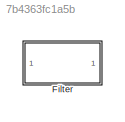
MODEL slx_7b4363fc1a5b
KIND model
CONFIG AbsTol = auto
CONFIG FixedStep = auto
CONFIG MaxStep = auto
CONFIG MinStep = auto
CONFIG RelTol = 1e-3
CONFIG SampleTimeConstraint = Unconstrained
CONFIG Solver = VariableStepAuto
CONFIG SolverMode = Auto
CONFIG SolverName = VariableStepAuto
CONFIG StartTime = 0.0
CONFIG StopTime = 10.0
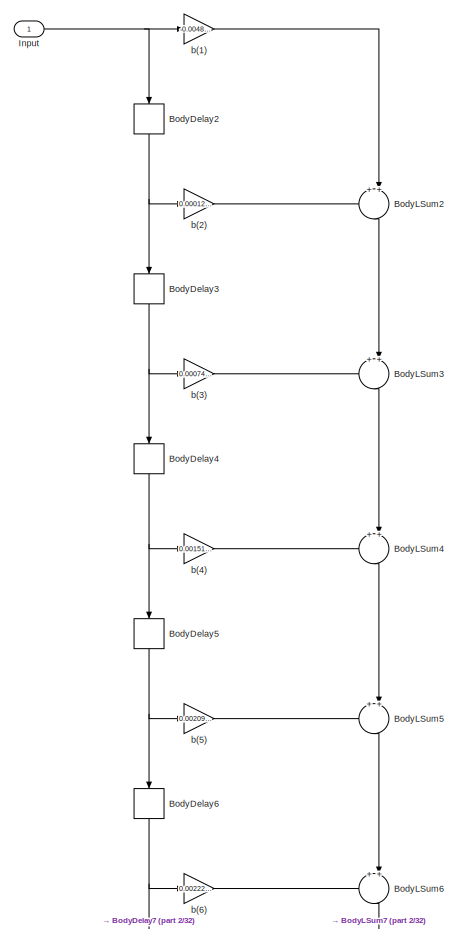
[diagram: Filter - part 1/32, full width, top band]
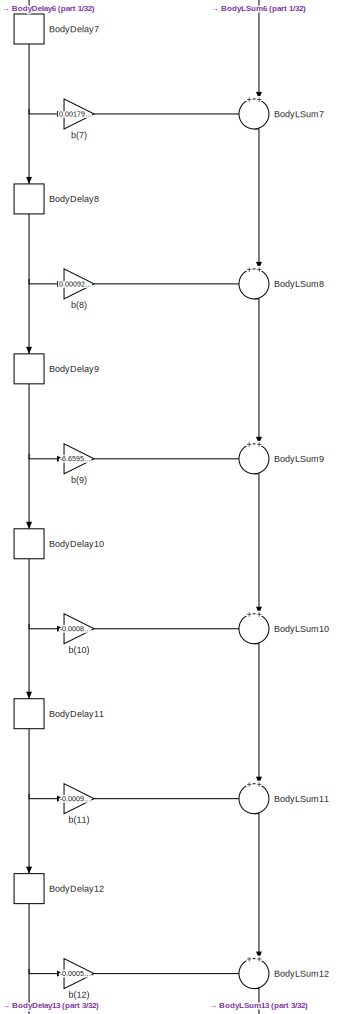
[diagram: Filter - part 2/32, top center region]
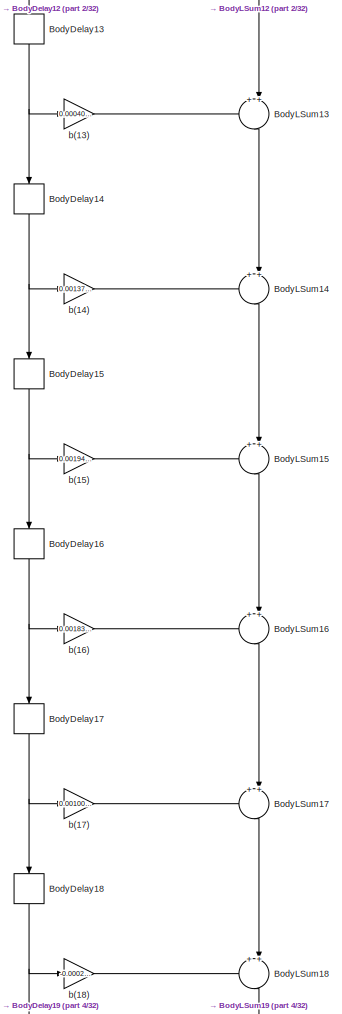
[diagram: Filter - part 3/32, top center region]
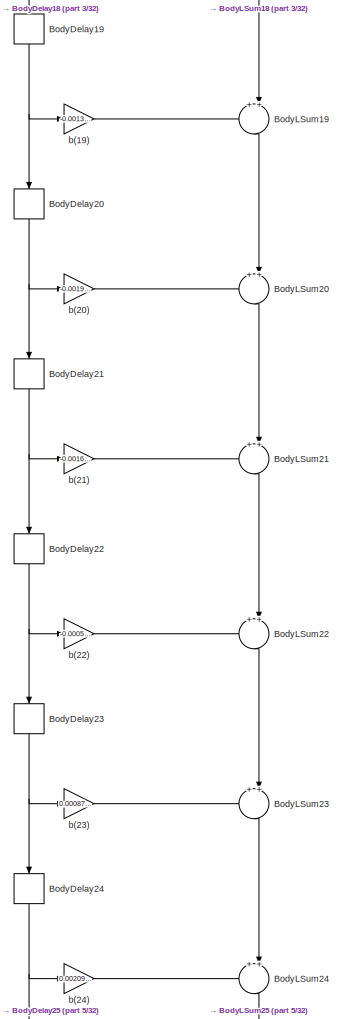
[diagram: Filter - part 4/32, top center region]
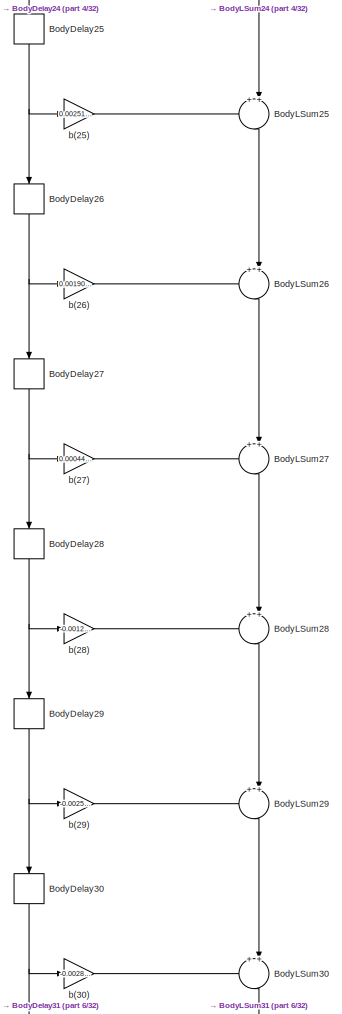
[diagram: Filter - part 5/32, top center region]
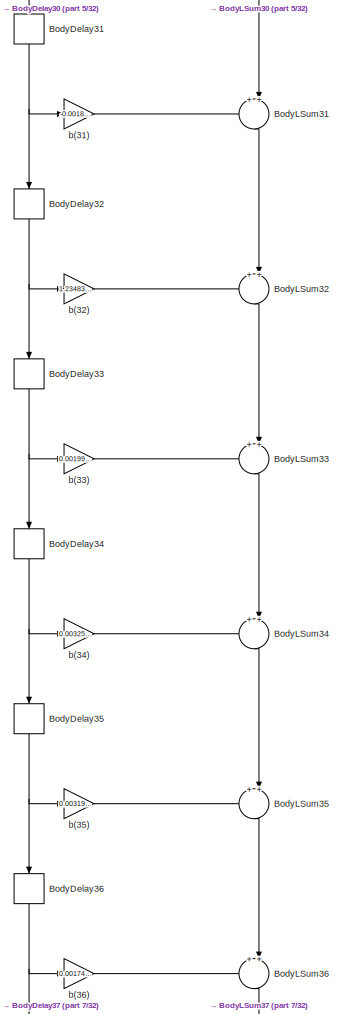
[diagram: Filter - part 6/32, top center region]
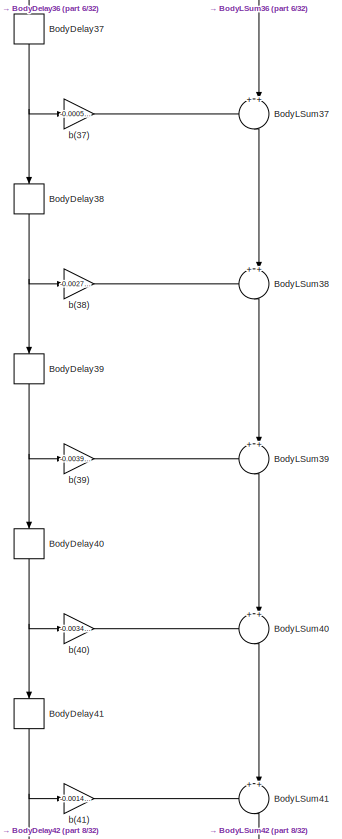
[diagram: Filter - part 7/32, top center region]
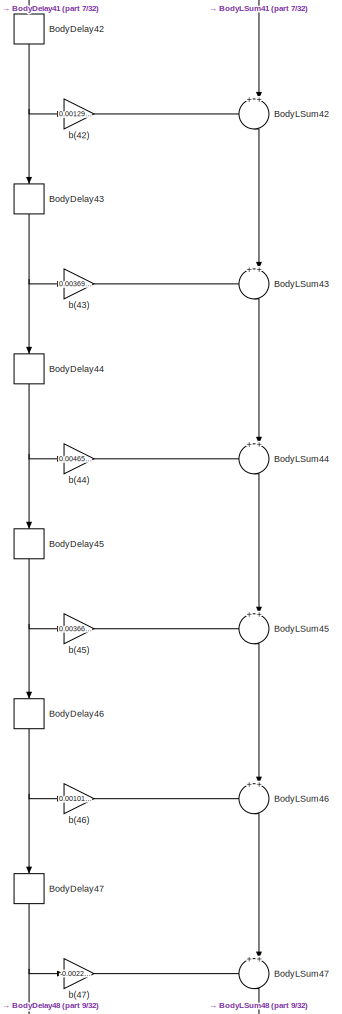
[diagram: Filter - part 8/32, top center region]
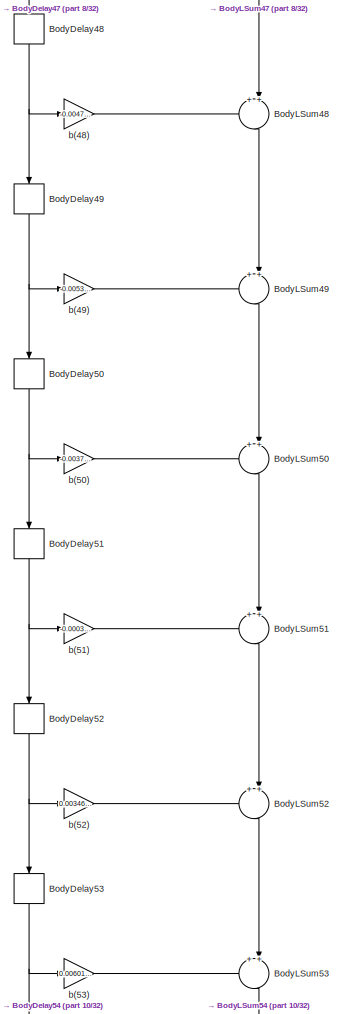
[diagram: Filter - part 9/32, top center region]
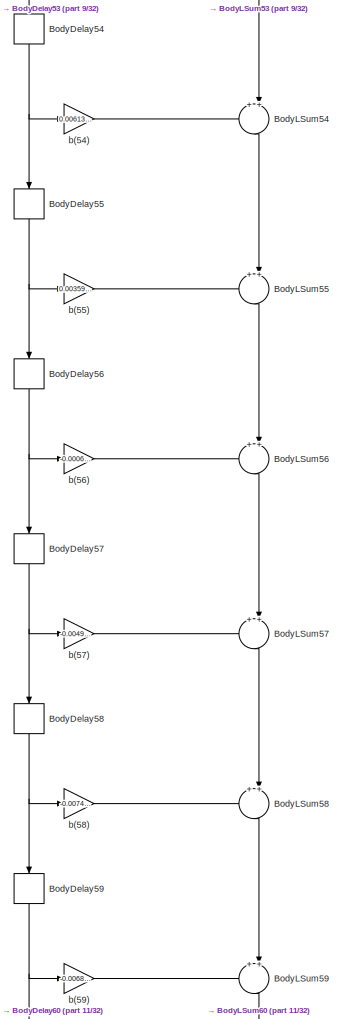
[diagram: Filter - part 10/32, top center region]
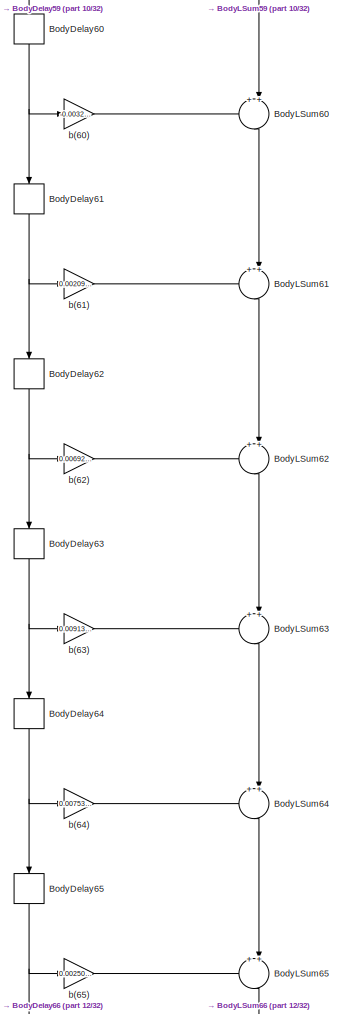
[diagram: Filter - part 11/32, top center region]
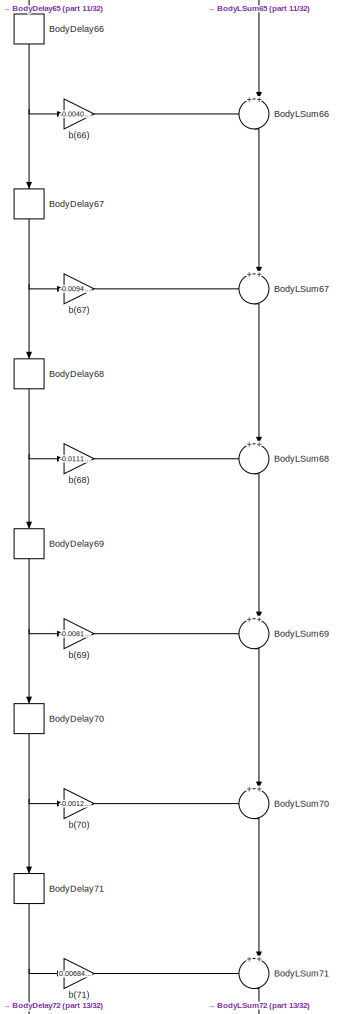
[diagram: Filter - part 12/32, central region]
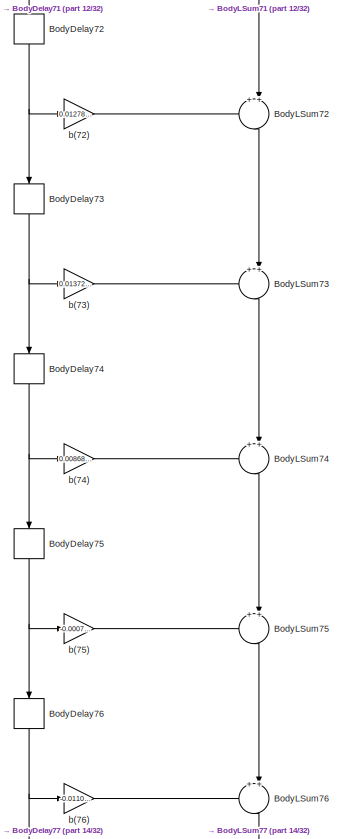
[diagram: Filter - part 13/32, central region]
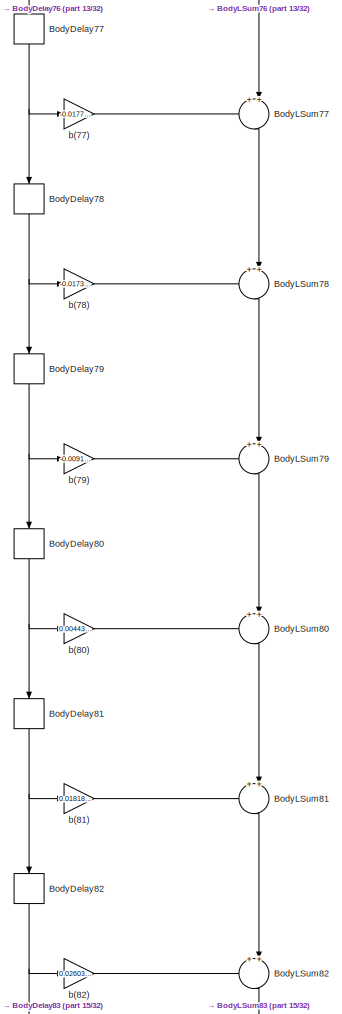
[diagram: Filter - part 14/32, central region]
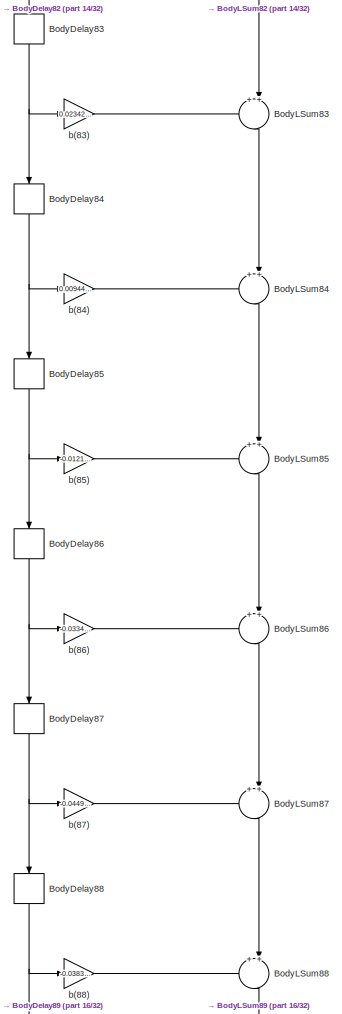
[diagram: Filter - part 15/32, central region]
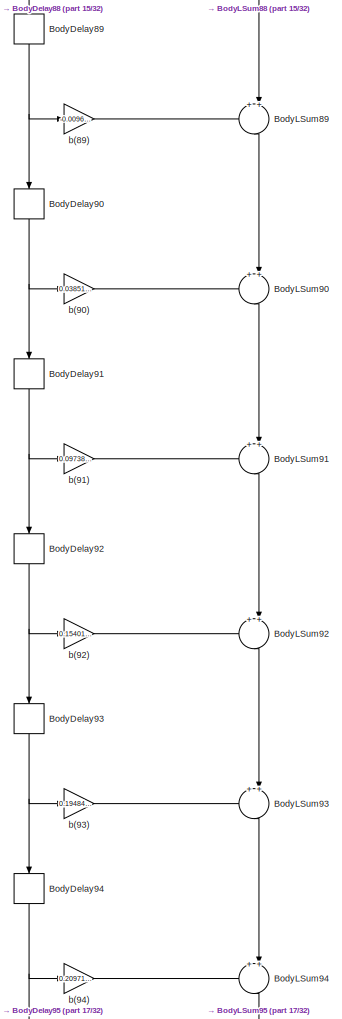
[diagram: Filter - part 16/32, central region]
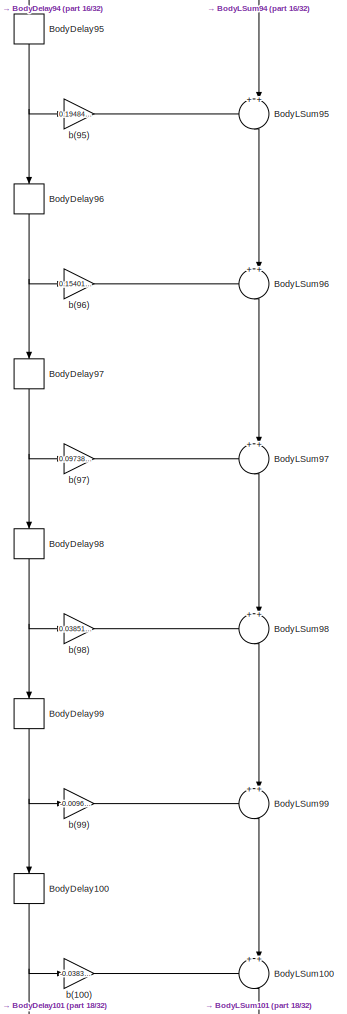
[diagram: Filter - part 17/32, central region]
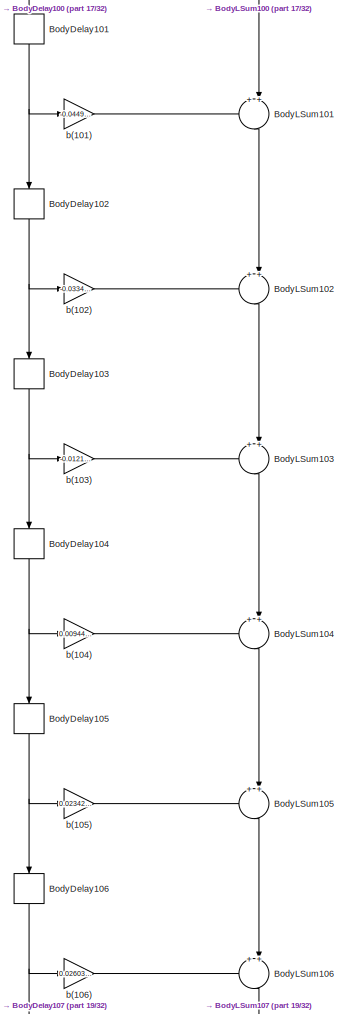
[diagram: Filter - part 18/32, central region]
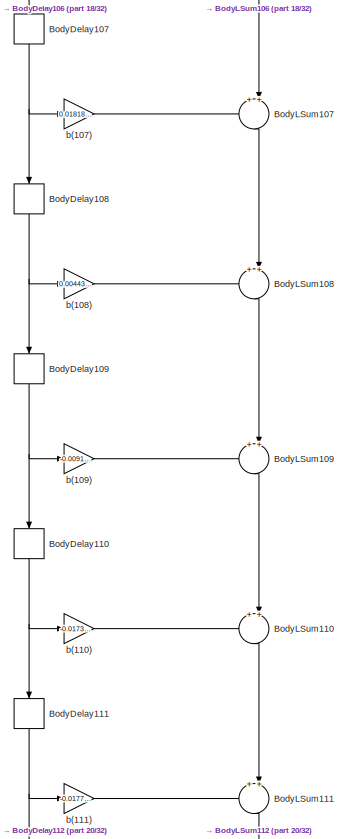
[diagram: Filter - part 19/32, central region]
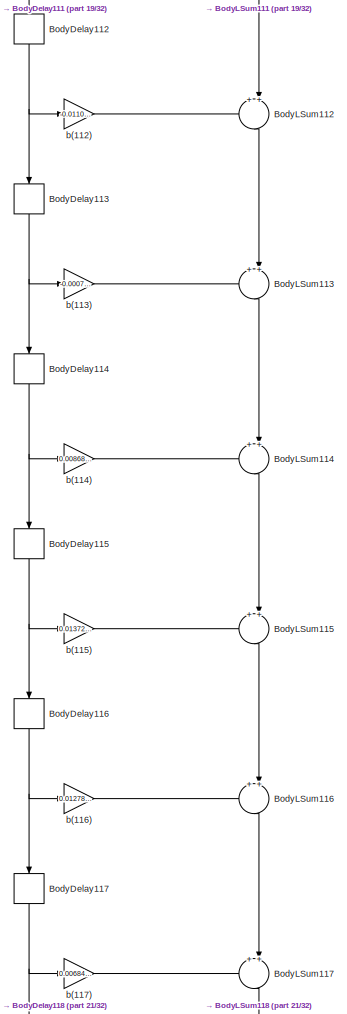
[diagram: Filter - part 20/32, central region]
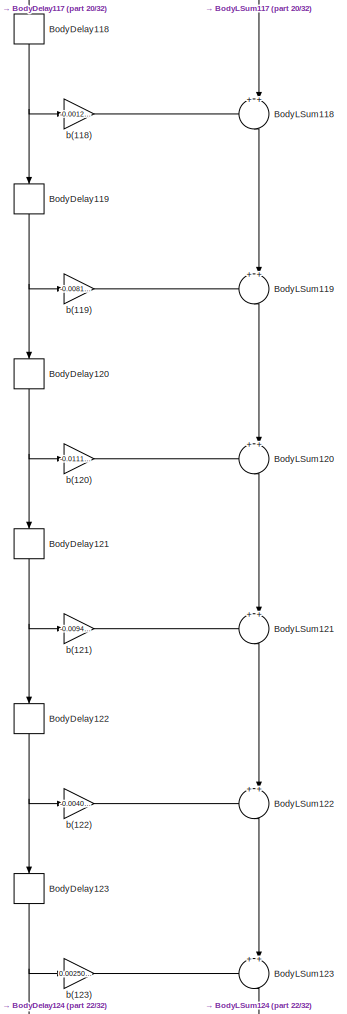
[diagram: Filter - part 21/32, central region]
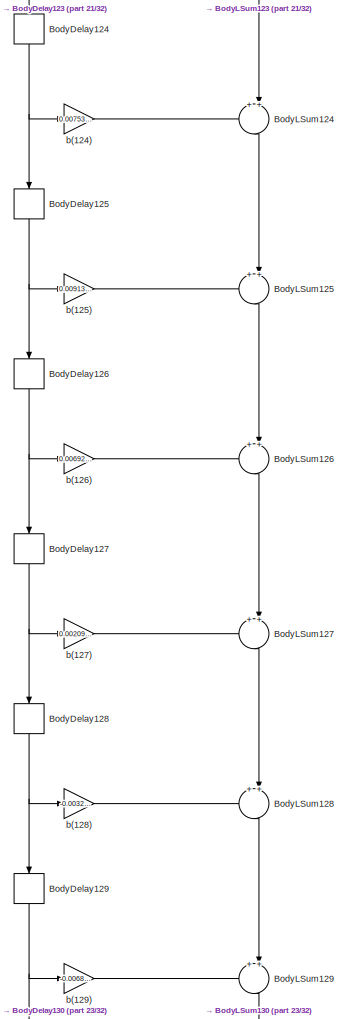
[diagram: Filter - part 22/32, bottom center region]
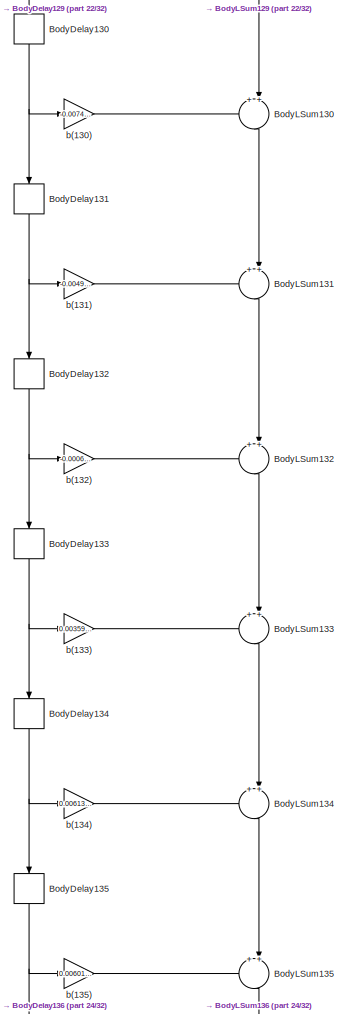
[diagram: Filter - part 23/32, bottom center region]
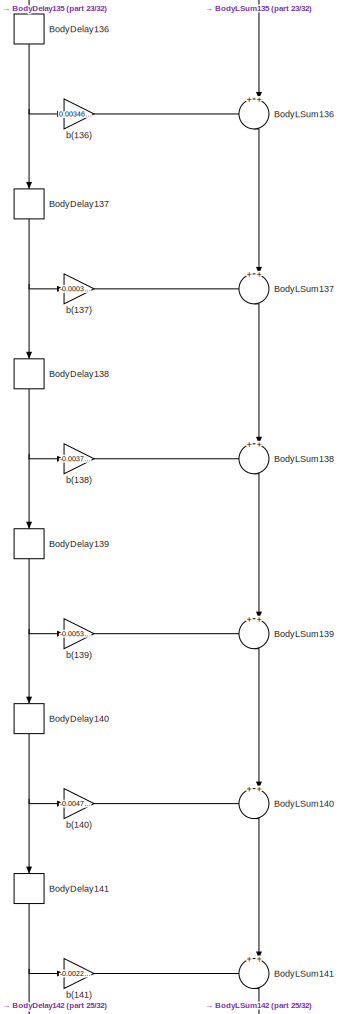
[diagram: Filter - part 24/32, bottom center region]
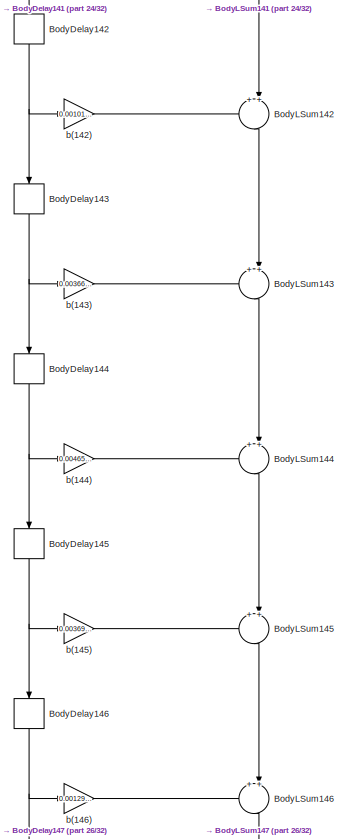
[diagram: Filter - part 25/32, bottom center region]
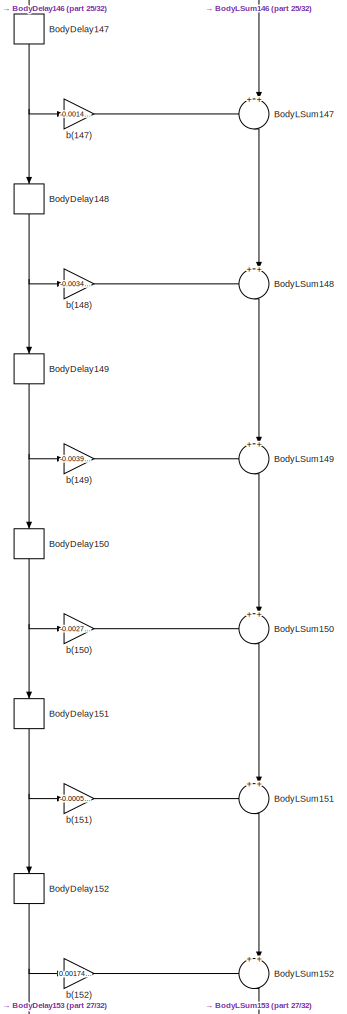
[diagram: Filter - part 26/32, bottom center region]
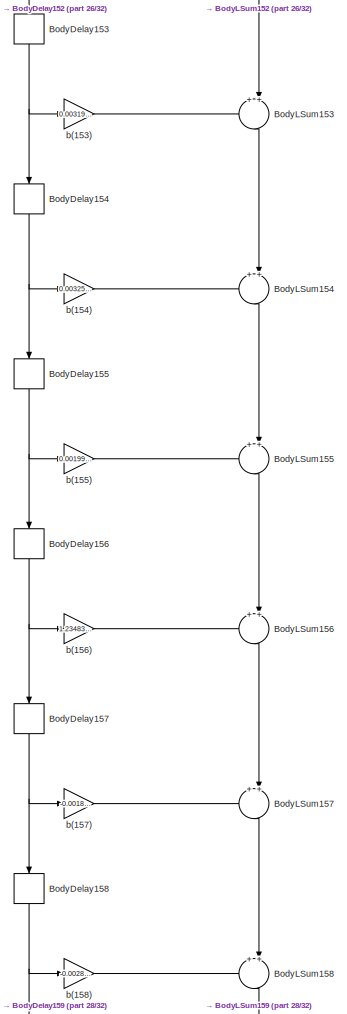
[diagram: Filter - part 27/32, bottom center region]
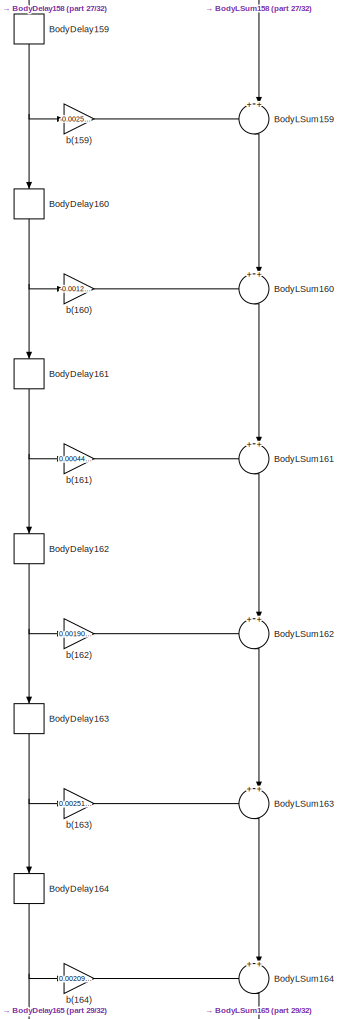
[diagram: Filter - part 28/32, bottom center region]
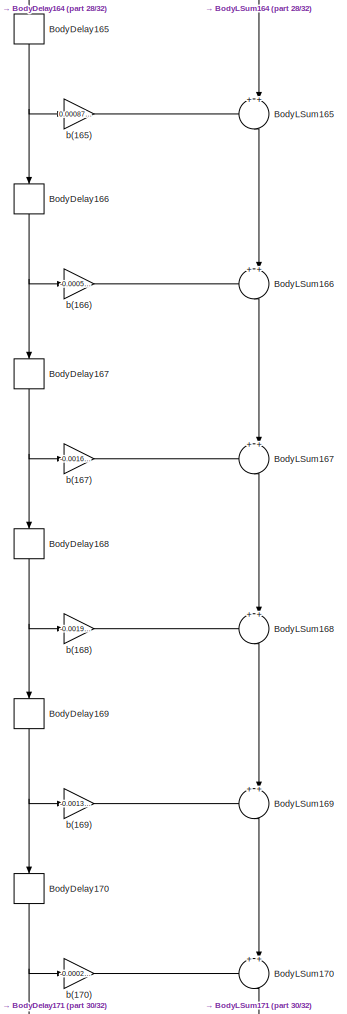
[diagram: Filter - part 29/32, bottom center region]
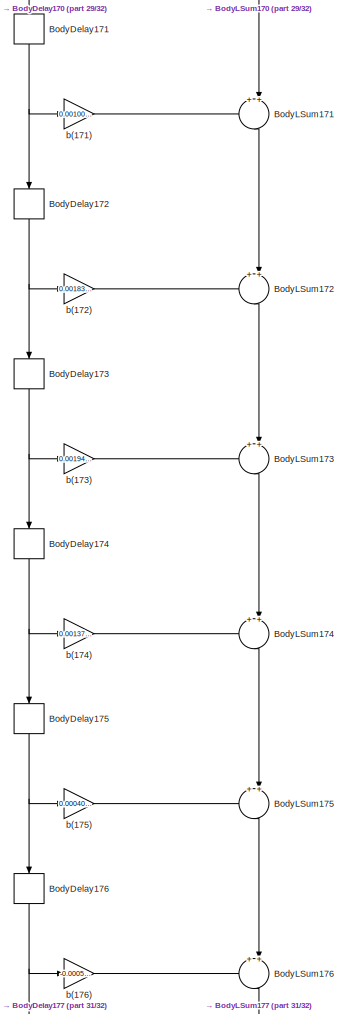
[diagram: Filter - part 30/32, bottom center region]
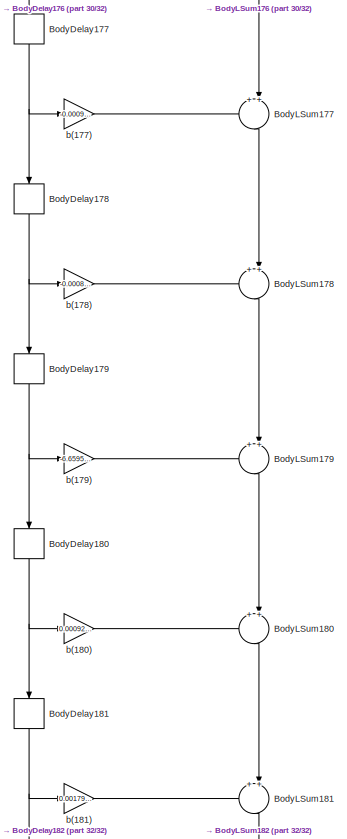
[diagram: Filter - part 31/32, bottom center region]
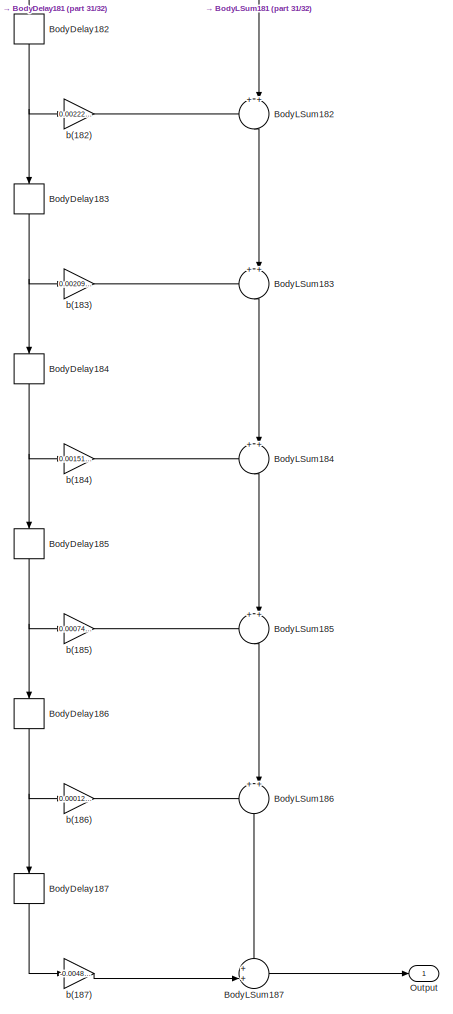
[diagram: Filter - part 32/32, full width, bottom band]
BLOCK [SubSystem] Filter
  ErrorFcn = dspFilterRealizedInBasicElemsAlgLoopErrFcnCallback
  Ports = [1, 1]
  RequestExecContextInheritance = off
  Tag = FilterWizardSubSystem
  UserDataPersistent = on
  Variant = off
BLOCK [Delay] Filter/BodyDelay10
  DelayLength = 1
  InitialCondition = 0
  InputPortMap = u0
  InputProcessing = Columns as channels (frame based)
  Ports = [1, 1]
BLOCK [Delay] Filter/BodyDelay100
  DelayLength = 1
  InitialCondition = 0
  InputPortMap = u0
  InputProcessing = Columns as channels (frame based)
  Ports = [1, 1]
BLOCK [Delay] Filter/BodyDelay101
  DelayLength = 1
  InitialCondition = 0
  InputPortMap = u0
  InputProcessing = Columns as channels (frame based)
  Ports = [1, 1]
BLOCK [Delay] Filter/BodyDelay102
  DelayLength = 1
  InitialCondition = 0
  InputPortMap = u0
  InputProcessing = Columns as channels (frame based)
  Ports = [1, 1]
BLOCK [Delay] Filter/BodyDelay103
  DelayLength = 1
  InitialCondition = 0
  InputPortMap = u0
  InputProcessing = Columns as channels (frame based)
  Ports = [1, 1]
BLOCK [Delay] Filter/BodyDelay104
  DelayLength = 1
  InitialCondition = 0
  InputPortMap = u0
  InputProcessing = Columns as channels (frame based)
  Ports = [1, 1]
BLOCK [Delay] Filter/BodyDelay105
  DelayLength = 1
  InitialCondition = 0
  InputPortMap = u0
  InputProcessing = Columns as channels (frame based)
  Ports = [1, 1]
BLOCK [Delay] Filter/BodyDelay106
  DelayLength = 1
  InitialCondition = 0
  InputPortMap = u0
  InputProcessing = Columns as channels (frame based)
  Ports = [1, 1]
BLOCK [Delay] Filter/BodyDelay107
  DelayLength = 1
  InitialCondition = 0
  InputPortMap = u0
  InputProcessing = Columns as channels (frame based)
  Ports = [1, 1]
BLOCK [Delay] Filter/BodyDelay108
  DelayLength = 1
  InitialCondition = 0
  InputPortMap = u0
  InputProcessing = Columns as channels (frame based)
  Ports = [1, 1]
BLOCK [Delay] Filter/BodyDelay109
  DelayLength = 1
  InitialCondition = 0
  InputPortMap = u0
  InputProcessing = Columns as channels (frame based)
  Ports = [1, 1]
BLOCK [Delay] Filter/BodyDelay11
  DelayLength = 1
  InitialCondition = 0
  InputPortMap = u0
  InputProcessing = Columns as channels (frame based)
  Ports = [1, 1]
BLOCK [Delay] Filter/BodyDelay110
  DelayLength = 1
  InitialCondition = 0
  InputPortMap = u0
  InputProcessing = Columns as channels (frame based)
  Ports = [1, 1]
BLOCK [Delay] Filter/BodyDelay111
  DelayLength = 1
  InitialCondition = 0
  InputPortMap = u0
  InputProcessing = Columns as channels (frame based)
  Ports = [1, 1]
BLOCK [Delay] Filter/BodyDelay112
  DelayLength = 1
  InitialCondition = 0
  InputPortMap = u0
  InputProcessing = Columns as channels (frame based)
  Ports = [1, 1]
BLOCK [Delay] Filter/BodyDelay113
  DelayLength = 1
  InitialCondition = 0
  InputPortMap = u0
  InputProcessing = Columns as channels (frame based)
  Ports = [1, 1]
BLOCK [Delay] Filter/BodyDelay114
  DelayLength = 1
  InitialCondition = 0
  InputPortMap = u0
  InputProcessing = Columns as channels (frame based)
  Ports = [1, 1]
BLOCK [Delay] Filter/BodyDelay115
  DelayLength = 1
  InitialCondition = 0
  InputPortMap = u0
  InputProcessing = Columns as channels (frame based)
  Ports = [1, 1]
BLOCK [Delay] Filter/BodyDelay116
  DelayLength = 1
  InitialCondition = 0
  InputPortMap = u0
  InputProcessing = Columns as channels (frame based)
  Ports = [1, 1]
BLOCK [Delay] Filter/BodyDelay117
  DelayLength = 1
  InitialCondition = 0
  InputPortMap = u0
  InputProcessing = Columns as channels (frame based)
  Ports = [1, 1]
BLOCK [Delay] Filter/BodyDelay118
  DelayLength = 1
  InitialCondition = 0
  InputPortMap = u0
  InputProcessing = Columns as channels (frame based)
  Ports = [1, 1]
BLOCK [Delay] Filter/BodyDelay119
  DelayLength = 1
  InitialCondition = 0
  InputPortMap = u0
  InputProcessing = Columns as channels (frame based)
  Ports = [1, 1]
BLOCK [Delay] Filter/BodyDelay12
  DelayLength = 1
  InitialCondition = 0
  InputPortMap = u0
  InputProcessing = Columns as channels (frame based)
  Ports = [1, 1]
BLOCK [Delay] Filter/BodyDelay120
  DelayLength = 1
  InitialCondition = 0
  InputPortMap = u0
  InputProcessing = Columns as channels (frame based)
  Ports = [1, 1]
BLOCK [Delay] Filter/BodyDelay121
  DelayLength = 1
  InitialCondition = 0
  InputPortMap = u0
  InputProcessing = Columns as channels (frame based)
  Ports = [1, 1]
BLOCK [Delay] Filter/BodyDelay122
  DelayLength = 1
  InitialCondition = 0
  InputPortMap = u0
  InputProcessing = Columns as channels (frame based)
  Ports = [1, 1]
BLOCK [Delay] Filter/BodyDelay123
  DelayLength = 1
  InitialCondition = 0
  InputPortMap = u0
  InputProcessing = Columns as channels (frame based)
  Ports = [1, 1]
BLOCK [Delay] Filter/BodyDelay124
  DelayLength = 1
  InitialCondition = 0
  InputPortMap = u0
  InputProcessing = Columns as channels (frame based)
  Ports = [1, 1]
BLOCK [Delay] Filter/BodyDelay125
  DelayLength = 1
  InitialCondition = 0
  InputPortMap = u0
  InputProcessing = Columns as channels (frame based)
  Ports = [1, 1]
BLOCK [Delay] Filter/BodyDelay126
  DelayLength = 1
  InitialCondition = 0
  InputPortMap = u0
  InputProcessing = Columns as channels (frame based)
  Ports = [1, 1]
BLOCK [Delay] Filter/BodyDelay127
  DelayLength = 1
  InitialCondition = 0
  InputPortMap = u0
  InputProcessing = Columns as channels (frame based)
  Ports = [1, 1]
BLOCK [Delay] Filter/BodyDelay128
  DelayLength = 1
  InitialCondition = 0
  InputPortMap = u0
  InputProcessing = Columns as channels (frame based)
  Ports = [1, 1]
BLOCK [Delay] Filter/BodyDelay129
  DelayLength = 1
  InitialCondition = 0
  InputPortMap = u0
  InputProcessing = Columns as channels (frame based)
  Ports = [1, 1]
BLOCK [Delay] Filter/BodyDelay13
  DelayLength = 1
  InitialCondition = 0
  InputPortMap = u0
  InputProcessing = Columns as channels (frame based)
  Ports = [1, 1]
BLOCK [Delay] Filter/BodyDelay130
  DelayLength = 1
  InitialCondition = 0
  InputPortMap = u0
  InputProcessing = Columns as channels (frame based)
  Ports = [1, 1]
BLOCK [Delay] Filter/BodyDelay131
  DelayLength = 1
  InitialCondition = 0
  InputPortMap = u0
  InputProcessing = Columns as channels (frame based)
  Ports = [1, 1]
BLOCK [Delay] Filter/BodyDelay132
  DelayLength = 1
  InitialCondition = 0
  InputPortMap = u0
  InputProcessing = Columns as channels (frame based)
  Ports = [1, 1]
BLOCK [Delay] Filter/BodyDelay133
  DelayLength = 1
  InitialCondition = 0
  InputPortMap = u0
  InputProcessing = Columns as channels (frame based)
  Ports = [1, 1]
BLOCK [Delay] Filter/BodyDelay134
  DelayLength = 1
  InitialCondition = 0
  InputPortMap = u0
  InputProcessing = Columns as channels (frame based)
  Ports = [1, 1]
BLOCK [Delay] Filter/BodyDelay135
  DelayLength = 1
  InitialCondition = 0
  InputPortMap = u0
  InputProcessing = Columns as channels (frame based)
  Ports = [1, 1]
BLOCK [Delay] Filter/BodyDelay136
  DelayLength = 1
  InitialCondition = 0
  InputPortMap = u0
  InputProcessing = Columns as channels (frame based)
  Ports = [1, 1]
BLOCK [Delay] Filter/BodyDelay137
  DelayLength = 1
  InitialCondition = 0
  InputPortMap = u0
  InputProcessing = Columns as channels (frame based)
  Ports = [1, 1]
BLOCK [Delay] Filter/BodyDelay138
  DelayLength = 1
  InitialCondition = 0
  InputPortMap = u0
  InputProcessing = Columns as channels (frame based)
  Ports = [1, 1]
BLOCK [Delay] Filter/BodyDelay139
  DelayLength = 1
  InitialCondition = 0
  InputPortMap = u0
  InputProcessing = Columns as channels (frame based)
  Ports = [1, 1]
BLOCK [Delay] Filter/BodyDelay14
  DelayLength = 1
  InitialCondition = 0
  InputPortMap = u0
  InputProcessing = Columns as channels (frame based)
  Ports = [1, 1]
BLOCK [Delay] Filter/BodyDelay140
  DelayLength = 1
  InitialCondition = 0
  InputPortMap = u0
  InputProcessing = Columns as channels (frame based)
  Ports = [1, 1]
BLOCK [Delay] Filter/BodyDelay141
  DelayLength = 1
  InitialCondition = 0
  InputPortMap = u0
  InputProcessing = Columns as channels (frame based)
  Ports = [1, 1]
BLOCK [Delay] Filter/BodyDelay142
  DelayLength = 1
  InitialCondition = 0
  InputPortMap = u0
  InputProcessing = Columns as channels (frame based)
  Ports = [1, 1]
BLOCK [Delay] Filter/BodyDelay143
  DelayLength = 1
  InitialCondition = 0
  InputPortMap = u0
  InputProcessing = Columns as channels (frame based)
  Ports = [1, 1]
BLOCK [Delay] Filter/BodyDelay144
  DelayLength = 1
  InitialCondition = 0
  InputPortMap = u0
  InputProcessing = Columns as channels (frame based)
  Ports = [1, 1]
BLOCK [Delay] Filter/BodyDelay145
  DelayLength = 1
  InitialCondition = 0
  InputPortMap = u0
  InputProcessing = Columns as channels (frame based)
  Ports = [1, 1]
BLOCK [Delay] Filter/BodyDelay146
  DelayLength = 1
  InitialCondition = 0
  InputPortMap = u0
  InputProcessing = Columns as channels (frame based)
  Ports = [1, 1]
BLOCK [Delay] Filter/BodyDelay147
  DelayLength = 1
  InitialCondition = 0
  InputPortMap = u0
  InputProcessing = Columns as channels (frame based)
  Ports = [1, 1]
BLOCK [Delay] Filter/BodyDelay148
  DelayLength = 1
  InitialCondition = 0
  InputPortMap = u0
  InputProcessing = Columns as channels (frame based)
  Ports = [1, 1]
BLOCK [Delay] Filter/BodyDelay149
  DelayLength = 1
  InitialCondition = 0
  InputPortMap = u0
  InputProcessing = Columns as channels (frame based)
  Ports = [1, 1]
BLOCK [Delay] Filter/BodyDelay15
  DelayLength = 1
  InitialCondition = 0
  InputPortMap = u0
  InputProcessing = Columns as channels (frame based)
  Ports = [1, 1]
BLOCK [Delay] Filter/BodyDelay150
  DelayLength = 1
  InitialCondition = 0
  InputPortMap = u0
  InputProcessing = Columns as channels (frame based)
  Ports = [1, 1]
BLOCK [Delay] Filter/BodyDelay151
  DelayLength = 1
  InitialCondition = 0
  InputPortMap = u0
  InputProcessing = Columns as channels (frame based)
  Ports = [1, 1]
BLOCK [Delay] Filter/BodyDelay152
  DelayLength = 1
  InitialCondition = 0
  InputPortMap = u0
  InputProcessing = Columns as channels (frame based)
  Ports = [1, 1]
BLOCK [Delay] Filter/BodyDelay153
  DelayLength = 1
  InitialCondition = 0
  InputPortMap = u0
  InputProcessing = Columns as channels (frame based)
  Ports = [1, 1]
BLOCK [Delay] Filter/BodyDelay154
  DelayLength = 1
  InitialCondition = 0
  InputPortMap = u0
  InputProcessing = Columns as channels (frame based)
  Ports = [1, 1]
BLOCK [Delay] Filter/BodyDelay155
  DelayLength = 1
  InitialCondition = 0
  InputPortMap = u0
  InputProcessing = Columns as channels (frame based)
  Ports = [1, 1]
BLOCK [Delay] Filter/BodyDelay156
  DelayLength = 1
  InitialCondition = 0
  InputPortMap = u0
  InputProcessing = Columns as channels (frame based)
  Ports = [1, 1]
BLOCK [Delay] Filter/BodyDelay157
  DelayLength = 1
  InitialCondition = 0
  InputPortMap = u0
  InputProcessing = Columns as channels (frame based)
  Ports = [1, 1]
BLOCK [Delay] Filter/BodyDelay158
  DelayLength = 1
  InitialCondition = 0
  InputPortMap = u0
  InputProcessing = Columns as channels (frame based)
  Ports = [1, 1]
BLOCK [Delay] Filter/BodyDelay159
  DelayLength = 1
  InitialCondition = 0
  InputPortMap = u0
  InputProcessing = Columns as channels (frame based)
  Ports = [1, 1]
BLOCK [Delay] Filter/BodyDelay16
  DelayLength = 1
  InitialCondition = 0
  InputPortMap = u0
  InputProcessing = Columns as channels (frame based)
  Ports = [1, 1]
BLOCK [Delay] Filter/BodyDelay160
  DelayLength = 1
  InitialCondition = 0
  InputPortMap = u0
  InputProcessing = Columns as channels (frame based)
  Ports = [1, 1]
BLOCK [Delay] Filter/BodyDelay161
  DelayLength = 1
  InitialCondition = 0
  InputPortMap = u0
  InputProcessing = Columns as channels (frame based)
  Ports = [1, 1]
BLOCK [Delay] Filter/BodyDelay162
  DelayLength = 1
  InitialCondition = 0
  InputPortMap = u0
  InputProcessing = Columns as channels (frame based)
  Ports = [1, 1]
BLOCK [Delay] Filter/BodyDelay163
  DelayLength = 1
  InitialCondition = 0
  InputPortMap = u0
  InputProcessing = Columns as channels (frame based)
  Ports = [1, 1]
BLOCK [Delay] Filter/BodyDelay164
  DelayLength = 1
  InitialCondition = 0
  InputPortMap = u0
  InputProcessing = Columns as channels (frame based)
  Ports = [1, 1]
BLOCK [Delay] Filter/BodyDelay165
  DelayLength = 1
  InitialCondition = 0
  InputPortMap = u0
  InputProcessing = Columns as channels (frame based)
  Ports = [1, 1]
BLOCK [Delay] Filter/BodyDelay166
  DelayLength = 1
  InitialCondition = 0
  InputPortMap = u0
  InputProcessing = Columns as channels (frame based)
  Ports = [1, 1]
BLOCK [Delay] Filter/BodyDelay167
  DelayLength = 1
  InitialCondition = 0
  InputPortMap = u0
  InputProcessing = Columns as channels (frame based)
  Ports = [1, 1]
BLOCK [Delay] Filter/BodyDelay168
  DelayLength = 1
  InitialCondition = 0
  InputPortMap = u0
  InputProcessing = Columns as channels (frame based)
  Ports = [1, 1]
BLOCK [Delay] Filter/BodyDelay169
  DelayLength = 1
  InitialCondition = 0
  InputPortMap = u0
  InputProcessing = Columns as channels (frame based)
  Ports = [1, 1]
BLOCK [Delay] Filter/BodyDelay17
  DelayLength = 1
  InitialCondition = 0
  InputPortMap = u0
  InputProcessing = Columns as channels (frame based)
  Ports = [1, 1]
BLOCK [Delay] Filter/BodyDelay170
  DelayLength = 1
  InitialCondition = 0
  InputPortMap = u0
  InputProcessing = Columns as channels (frame based)
  Ports = [1, 1]
BLOCK [Delay] Filter/BodyDelay171
  DelayLength = 1
  InitialCondition = 0
  InputPortMap = u0
  InputProcessing = Columns as channels (frame based)
  Ports = [1, 1]
BLOCK [Delay] Filter/BodyDelay172
  DelayLength = 1
  InitialCondition = 0
  InputPortMap = u0
  InputProcessing = Columns as channels (frame based)
  Ports = [1, 1]
BLOCK [Delay] Filter/BodyDelay173
  DelayLength = 1
  InitialCondition = 0
  InputPortMap = u0
  InputProcessing = Columns as channels (frame based)
  Ports = [1, 1]
BLOCK [Delay] Filter/BodyDelay174
  DelayLength = 1
  InitialCondition = 0
  InputPortMap = u0
  InputProcessing = Columns as channels (frame based)
  Ports = [1, 1]
BLOCK [Delay] Filter/BodyDelay175
  DelayLength = 1
  InitialCondition = 0
  InputPortMap = u0
  InputProcessing = Columns as channels (frame based)
  Ports = [1, 1]
BLOCK [Delay] Filter/BodyDelay176
  DelayLength = 1
  InitialCondition = 0
  InputPortMap = u0
  InputProcessing = Columns as channels (frame based)
  Ports = [1, 1]
BLOCK [Delay] Filter/BodyDelay177
  DelayLength = 1
  InitialCondition = 0
  InputPortMap = u0
  InputProcessing = Columns as channels (frame based)
  Ports = [1, 1]
BLOCK [Delay] Filter/BodyDelay178
  DelayLength = 1
  InitialCondition = 0
  InputPortMap = u0
  InputProcessing = Columns as channels (frame based)
  Ports = [1, 1]
BLOCK [Delay] Filter/BodyDelay179
  DelayLength = 1
  InitialCondition = 0
  InputPortMap = u0
  InputProcessing = Columns as channels (frame based)
  Ports = [1, 1]
BLOCK [Delay] Filter/BodyDelay18
  DelayLength = 1
  InitialCondition = 0
  InputPortMap = u0
  InputProcessing = Columns as channels (frame based)
  Ports = [1, 1]
BLOCK [Delay] Filter/BodyDelay180
  DelayLength = 1
  InitialCondition = 0
  InputPortMap = u0
  InputProcessing = Columns as channels (frame based)
  Ports = [1, 1]
BLOCK [Delay] Filter/BodyDelay181
  DelayLength = 1
  InitialCondition = 0
  InputPortMap = u0
  InputProcessing = Columns as channels (frame based)
  Ports = [1, 1]
BLOCK [Delay] Filter/BodyDelay182
  DelayLength = 1
  InitialCondition = 0
  InputPortMap = u0
  InputProcessing = Columns as channels (frame based)
  Ports = [1, 1]
BLOCK [Delay] Filter/BodyDelay183
  DelayLength = 1
  InitialCondition = 0
  InputPortMap = u0
  InputProcessing = Columns as channels (frame based)
  Ports = [1, 1]
BLOCK [Delay] Filter/BodyDelay184
  DelayLength = 1
  InitialCondition = 0
  InputPortMap = u0
  InputProcessing = Columns as channels (frame based)
  Ports = [1, 1]
BLOCK [Delay] Filter/BodyDelay185
  DelayLength = 1
  InitialCondition = 0
  InputPortMap = u0
  InputProcessing = Columns as channels (frame based)
  Ports = [1, 1]
BLOCK [Delay] Filter/BodyDelay186
  DelayLength = 1
  InitialCondition = 0
  InputPortMap = u0
  InputProcessing = Columns as channels (frame based)
  Ports = [1, 1]
BLOCK [Delay] Filter/BodyDelay187
  DelayLength = 1
  InitialCondition = 0
  InputPortMap = u0
  InputProcessing = Columns as channels (frame based)
  Ports = [1, 1]
BLOCK [Delay] Filter/BodyDelay19
  DelayLength = 1
  InitialCondition = 0
  InputPortMap = u0
  InputProcessing = Columns as channels (frame based)
  Ports = [1, 1]
BLOCK [Delay] Filter/BodyDelay2
  DelayLength = 1
  InitialCondition = 0
  InputPortMap = u0
  InputProcessing = Columns as channels (frame based)
  Ports = [1, 1]
BLOCK [Delay] Filter/BodyDelay20
  DelayLength = 1
  InitialCondition = 0
  InputPortMap = u0
  InputProcessing = Columns as channels (frame based)
  Ports = [1, 1]
BLOCK [Delay] Filter/BodyDelay21
  DelayLength = 1
  InitialCondition = 0
  InputPortMap = u0
  InputProcessing = Columns as channels (frame based)
  Ports = [1, 1]
BLOCK [Delay] Filter/BodyDelay22
  DelayLength = 1
  InitialCondition = 0
  InputPortMap = u0
  InputProcessing = Columns as channels (frame based)
  Ports = [1, 1]
BLOCK [Delay] Filter/BodyDelay23
  DelayLength = 1
  InitialCondition = 0
  InputPortMap = u0
  InputProcessing = Columns as channels (frame based)
  Ports = [1, 1]
BLOCK [Delay] Filter/BodyDelay24
  DelayLength = 1
  InitialCondition = 0
  InputPortMap = u0
  InputProcessing = Columns as channels (frame based)
  Ports = [1, 1]
BLOCK [Delay] Filter/BodyDelay25
  DelayLength = 1
  InitialCondition = 0
  InputPortMap = u0
  InputProcessing = Columns as channels (frame based)
  Ports = [1, 1]
BLOCK [Delay] Filter/BodyDelay26
  DelayLength = 1
  InitialCondition = 0
  InputPortMap = u0
  InputProcessing = Columns as channels (frame based)
  Ports = [1, 1]
BLOCK [Delay] Filter/BodyDelay27
  DelayLength = 1
  InitialCondition = 0
  InputPortMap = u0
  InputProcessing = Columns as channels (frame based)
  Ports = [1, 1]
BLOCK [Delay] Filter/BodyDelay28
  DelayLength = 1
  InitialCondition = 0
  InputPortMap = u0
  InputProcessing = Columns as channels (frame based)
  Ports = [1, 1]
BLOCK [Delay] Filter/BodyDelay29
  DelayLength = 1
  InitialCondition = 0
  InputPortMap = u0
  InputProcessing = Columns as channels (frame based)
  Ports = [1, 1]
BLOCK [Delay] Filter/BodyDelay3
  DelayLength = 1
  InitialCondition = 0
  InputPortMap = u0
  InputProcessing = Columns as channels (frame based)
  Ports = [1, 1]
BLOCK [Delay] Filter/BodyDelay30
  DelayLength = 1
  InitialCondition = 0
  InputPortMap = u0
  InputProcessing = Columns as channels (frame based)
  Ports = [1, 1]
BLOCK [Delay] Filter/BodyDelay31
  DelayLength = 1
  InitialCondition = 0
  InputPortMap = u0
  InputProcessing = Columns as channels (frame based)
  Ports = [1, 1]
BLOCK [Delay] Filter/BodyDelay32
  DelayLength = 1
  InitialCondition = 0
  InputPortMap = u0
  InputProcessing = Columns as channels (frame based)
  Ports = [1, 1]
BLOCK [Delay] Filter/BodyDelay33
  DelayLength = 1
  InitialCondition = 0
  InputPortMap = u0
  InputProcessing = Columns as channels (frame based)
  Ports = [1, 1]
BLOCK [Delay] Filter/BodyDelay34
  DelayLength = 1
  InitialCondition = 0
  InputPortMap = u0
  InputProcessing = Columns as channels (frame based)
  Ports = [1, 1]
BLOCK [Delay] Filter/BodyDelay35
  DelayLength = 1
  InitialCondition = 0
  InputPortMap = u0
  InputProcessing = Columns as channels (frame based)
  Ports = [1, 1]
BLOCK [Delay] Filter/BodyDelay36
  DelayLength = 1
  InitialCondition = 0
  InputPortMap = u0
  InputProcessing = Columns as channels (frame based)
  Ports = [1, 1]
BLOCK [Delay] Filter/BodyDelay37
  DelayLength = 1
  InitialCondition = 0
  InputPortMap = u0
  InputProcessing = Columns as channels (frame based)
  Ports = [1, 1]
BLOCK [Delay] Filter/BodyDelay38
  DelayLength = 1
  InitialCondition = 0
  InputPortMap = u0
  InputProcessing = Columns as channels (frame based)
  Ports = [1, 1]
BLOCK [Delay] Filter/BodyDelay39
  DelayLength = 1
  InitialCondition = 0
  InputPortMap = u0
  InputProcessing = Columns as channels (frame based)
  Ports = [1, 1]
BLOCK [Delay] Filter/BodyDelay4
  DelayLength = 1
  InitialCondition = 0
  InputPortMap = u0
  InputProcessing = Columns as channels (frame based)
  Ports = [1, 1]
BLOCK [Delay] Filter/BodyDelay40
  DelayLength = 1
  InitialCondition = 0
  InputPortMap = u0
  InputProcessing = Columns as channels (frame based)
  Ports = [1, 1]
BLOCK [Delay] Filter/BodyDelay41
  DelayLength = 1
  InitialCondition = 0
  InputPortMap = u0
  InputProcessing = Columns as channels (frame based)
  Ports = [1, 1]
BLOCK [Delay] Filter/BodyDelay42
  DelayLength = 1
  InitialCondition = 0
  InputPortMap = u0
  InputProcessing = Columns as channels (frame based)
  Ports = [1, 1]
BLOCK [Delay] Filter/BodyDelay43
  DelayLength = 1
  InitialCondition = 0
  InputPortMap = u0
  InputProcessing = Columns as channels (frame based)
  Ports = [1, 1]
BLOCK [Delay] Filter/BodyDelay44
  DelayLength = 1
  InitialCondition = 0
  InputPortMap = u0
  InputProcessing = Columns as channels (frame based)
  Ports = [1, 1]
BLOCK [Delay] Filter/BodyDelay45
  DelayLength = 1
  InitialCondition = 0
  InputPortMap = u0
  InputProcessing = Columns as channels (frame based)
  Ports = [1, 1]
BLOCK [Delay] Filter/BodyDelay46
  DelayLength = 1
  InitialCondition = 0
  InputPortMap = u0
  InputProcessing = Columns as channels (frame based)
  Ports = [1, 1]
BLOCK [Delay] Filter/BodyDelay47
  DelayLength = 1
  InitialCondition = 0
  InputPortMap = u0
  InputProcessing = Columns as channels (frame based)
  Ports = [1, 1]
BLOCK [Delay] Filter/BodyDelay48
  DelayLength = 1
  InitialCondition = 0
  InputPortMap = u0
  InputProcessing = Columns as channels (frame based)
  Ports = [1, 1]
BLOCK [Delay] Filter/BodyDelay49
  DelayLength = 1
  InitialCondition = 0
  InputPortMap = u0
  InputProcessing = Columns as channels (frame based)
  Ports = [1, 1]
BLOCK [Delay] Filter/BodyDelay5
  DelayLength = 1
  InitialCondition = 0
  InputPortMap = u0
  InputProcessing = Columns as channels (frame based)
  Ports = [1, 1]
BLOCK [Delay] Filter/BodyDelay50
  DelayLength = 1
  InitialCondition = 0
  InputPortMap = u0
  InputProcessing = Columns as channels (frame based)
  Ports = [1, 1]
BLOCK [Delay] Filter/BodyDelay51
  DelayLength = 1
  InitialCondition = 0
  InputPortMap = u0
  InputProcessing = Columns as channels (frame based)
  Ports = [1, 1]
BLOCK [Delay] Filter/BodyDelay52
  DelayLength = 1
  InitialCondition = 0
  InputPortMap = u0
  InputProcessing = Columns as channels (frame based)
  Ports = [1, 1]
BLOCK [Delay] Filter/BodyDelay53
  DelayLength = 1
  InitialCondition = 0
  InputPortMap = u0
  InputProcessing = Columns as channels (frame based)
  Ports = [1, 1]
BLOCK [Delay] Filter/BodyDelay54
  DelayLength = 1
  InitialCondition = 0
  InputPortMap = u0
  InputProcessing = Columns as channels (frame based)
  Ports = [1, 1]
BLOCK [Delay] Filter/BodyDelay55
  DelayLength = 1
  InitialCondition = 0
  InputPortMap = u0
  InputProcessing = Columns as channels (frame based)
  Ports = [1, 1]
BLOCK [Delay] Filter/BodyDelay56
  DelayLength = 1
  InitialCondition = 0
  InputPortMap = u0
  InputProcessing = Columns as channels (frame based)
  Ports = [1, 1]
BLOCK [Delay] Filter/BodyDelay57
  DelayLength = 1
  InitialCondition = 0
  InputPortMap = u0
  InputProcessing = Columns as channels (frame based)
  Ports = [1, 1]
BLOCK [Delay] Filter/BodyDelay58
  DelayLength = 1
  InitialCondition = 0
  InputPortMap = u0
  InputProcessing = Columns as channels (frame based)
  Ports = [1, 1]
BLOCK [Delay] Filter/BodyDelay59
  DelayLength = 1
  InitialCondition = 0
  InputPortMap = u0
  InputProcessing = Columns as channels (frame based)
  Ports = [1, 1]
BLOCK [Delay] Filter/BodyDelay6
  DelayLength = 1
  InitialCondition = 0
  InputPortMap = u0
  InputProcessing = Columns as channels (frame based)
  Ports = [1, 1]
BLOCK [Delay] Filter/BodyDelay60
  DelayLength = 1
  InitialCondition = 0
  InputPortMap = u0
  InputProcessing = Columns as channels (frame based)
  Ports = [1, 1]
BLOCK [Delay] Filter/BodyDelay61
  DelayLength = 1
  InitialCondition = 0
  InputPortMap = u0
  InputProcessing = Columns as channels (frame based)
  Ports = [1, 1]
BLOCK [Delay] Filter/BodyDelay62
  DelayLength = 1
  InitialCondition = 0
  InputPortMap = u0
  InputProcessing = Columns as channels (frame based)
  Ports = [1, 1]
BLOCK [Delay] Filter/BodyDelay63
  DelayLength = 1
  InitialCondition = 0
  InputPortMap = u0
  InputProcessing = Columns as channels (frame based)
  Ports = [1, 1]
BLOCK [Delay] Filter/BodyDelay64
  DelayLength = 1
  InitialCondition = 0
  InputPortMap = u0
  InputProcessing = Columns as channels (frame based)
  Ports = [1, 1]
BLOCK [Delay] Filter/BodyDelay65
  DelayLength = 1
  InitialCondition = 0
  InputPortMap = u0
  InputProcessing = Columns as channels (frame based)
  Ports = [1, 1]
BLOCK [Delay] Filter/BodyDelay66
  DelayLength = 1
  InitialCondition = 0
  InputPortMap = u0
  InputProcessing = Columns as channels (frame based)
  Ports = [1, 1]
BLOCK [Delay] Filter/BodyDelay67
  DelayLength = 1
  InitialCondition = 0
  InputPortMap = u0
  InputProcessing = Columns as channels (frame based)
  Ports = [1, 1]
BLOCK [Delay] Filter/BodyDelay68
  DelayLength = 1
  InitialCondition = 0
  InputPortMap = u0
  InputProcessing = Columns as channels (frame based)
  Ports = [1, 1]
BLOCK [Delay] Filter/BodyDelay69
  DelayLength = 1
  InitialCondition = 0
  InputPortMap = u0
  InputProcessing = Columns as channels (frame based)
  Ports = [1, 1]
BLOCK [Delay] Filter/BodyDelay7
  DelayLength = 1
  InitialCondition = 0
  InputPortMap = u0
  InputProcessing = Columns as channels (frame based)
  Ports = [1, 1]
BLOCK [Delay] Filter/BodyDelay70
  DelayLength = 1
  InitialCondition = 0
  InputPortMap = u0
  InputProcessing = Columns as channels (frame based)
  Ports = [1, 1]
BLOCK [Delay] Filter/BodyDelay71
  DelayLength = 1
  InitialCondition = 0
  InputPortMap = u0
  InputProcessing = Columns as channels (frame based)
  Ports = [1, 1]
BLOCK [Delay] Filter/BodyDelay72
  DelayLength = 1
  InitialCondition = 0
  InputPortMap = u0
  InputProcessing = Columns as channels (frame based)
  Ports = [1, 1]
BLOCK [Delay] Filter/BodyDelay73
  DelayLength = 1
  InitialCondition = 0
  InputPortMap = u0
  InputProcessing = Columns as channels (frame based)
  Ports = [1, 1]
BLOCK [Delay] Filter/BodyDelay74
  DelayLength = 1
  InitialCondition = 0
  InputPortMap = u0
  InputProcessing = Columns as channels (frame based)
  Ports = [1, 1]
BLOCK [Delay] Filter/BodyDelay75
  DelayLength = 1
  InitialCondition = 0
  InputPortMap = u0
  InputProcessing = Columns as channels (frame based)
  Ports = [1, 1]
BLOCK [Delay] Filter/BodyDelay76
  DelayLength = 1
  InitialCondition = 0
  InputPortMap = u0
  InputProcessing = Columns as channels (frame based)
  Ports = [1, 1]
BLOCK [Delay] Filter/BodyDelay77
  DelayLength = 1
  InitialCondition = 0
  InputPortMap = u0
  InputProcessing = Columns as channels (frame based)
  Ports = [1, 1]
BLOCK [Delay] Filter/BodyDelay78
  DelayLength = 1
  InitialCondition = 0
  InputPortMap = u0
  InputProcessing = Columns as channels (frame based)
  Ports = [1, 1]
BLOCK [Delay] Filter/BodyDelay79
  DelayLength = 1
  InitialCondition = 0
  InputPortMap = u0
  InputProcessing = Columns as channels (frame based)
  Ports = [1, 1]
BLOCK [Delay] Filter/BodyDelay8
  DelayLength = 1
  InitialCondition = 0
  InputPortMap = u0
  InputProcessing = Columns as channels (frame based)
  Ports = [1, 1]
BLOCK [Delay] Filter/BodyDelay80
  DelayLength = 1
  InitialCondition = 0
  InputPortMap = u0
  InputProcessing = Columns as channels (frame based)
  Ports = [1, 1]
BLOCK [Delay] Filter/BodyDelay81
  DelayLength = 1
  InitialCondition = 0
  InputPortMap = u0
  InputProcessing = Columns as channels (frame based)
  Ports = [1, 1]
BLOCK [Delay] Filter/BodyDelay82
  DelayLength = 1
  InitialCondition = 0
  InputPortMap = u0
  InputProcessing = Columns as channels (frame based)
  Ports = [1, 1]
BLOCK [Delay] Filter/BodyDelay83
  DelayLength = 1
  InitialCondition = 0
  InputPortMap = u0
  InputProcessing = Columns as channels (frame based)
  Ports = [1, 1]
BLOCK [Delay] Filter/BodyDelay84
  DelayLength = 1
  InitialCondition = 0
  InputPortMap = u0
  InputProcessing = Columns as channels (frame based)
  Ports = [1, 1]
BLOCK [Delay] Filter/BodyDelay85
  DelayLength = 1
  InitialCondition = 0
  InputPortMap = u0
  InputProcessing = Columns as channels (frame based)
  Ports = [1, 1]
BLOCK [Delay] Filter/BodyDelay86
  DelayLength = 1
  InitialCondition = 0
  InputPortMap = u0
  InputProcessing = Columns as channels (frame based)
  Ports = [1, 1]
BLOCK [Delay] Filter/BodyDelay87
  DelayLength = 1
  InitialCondition = 0
  InputPortMap = u0
  InputProcessing = Columns as channels (frame based)
  Ports = [1, 1]
BLOCK [Delay] Filter/BodyDelay88
  DelayLength = 1
  InitialCondition = 0
  InputPortMap = u0
  InputProcessing = Columns as channels (frame based)
  Ports = [1, 1]
BLOCK [Delay] Filter/BodyDelay89
  DelayLength = 1
  InitialCondition = 0
  InputPortMap = u0
  InputProcessing = Columns as channels (frame based)
  Ports = [1, 1]
BLOCK [Delay] Filter/BodyDelay9
  DelayLength = 1
  InitialCondition = 0
  InputPortMap = u0
  InputProcessing = Columns as channels (frame based)
  Ports = [1, 1]
BLOCK [Delay] Filter/BodyDelay90
  DelayLength = 1
  InitialCondition = 0
  InputPortMap = u0
  InputProcessing = Columns as channels (frame based)
  Ports = [1, 1]
BLOCK [Delay] Filter/BodyDelay91
  DelayLength = 1
  InitialCondition = 0
  InputPortMap = u0
  InputProcessing = Columns as channels (frame based)
  Ports = [1, 1]
BLOCK [Delay] Filter/BodyDelay92
  DelayLength = 1
  InitialCondition = 0
  InputPortMap = u0
  InputProcessing = Columns as channels (frame based)
  Ports = [1, 1]
BLOCK [Delay] Filter/BodyDelay93
  DelayLength = 1
  InitialCondition = 0
  InputPortMap = u0
  InputProcessing = Columns as channels (frame based)
  Ports = [1, 1]
BLOCK [Delay] Filter/BodyDelay94
  DelayLength = 1
  InitialCondition = 0
  InputPortMap = u0
  InputProcessing = Columns as channels (frame based)
  Ports = [1, 1]
BLOCK [Delay] Filter/BodyDelay95
  DelayLength = 1
  InitialCondition = 0
  InputPortMap = u0
  InputProcessing = Columns as channels (frame based)
  Ports = [1, 1]
BLOCK [Delay] Filter/BodyDelay96
  DelayLength = 1
  InitialCondition = 0
  InputPortMap = u0
  InputProcessing = Columns as channels (frame based)
  Ports = [1, 1]
BLOCK [Delay] Filter/BodyDelay97
  DelayLength = 1
  InitialCondition = 0
  InputPortMap = u0
  InputProcessing = Columns as channels (frame based)
  Ports = [1, 1]
BLOCK [Delay] Filter/BodyDelay98
  DelayLength = 1
  InitialCondition = 0
  InputPortMap = u0
  InputProcessing = Columns as channels (frame based)
  Ports = [1, 1]
BLOCK [Delay] Filter/BodyDelay99
  DelayLength = 1
  InitialCondition = 0
  InputPortMap = u0
  InputProcessing = Columns as channels (frame based)
  Ports = [1, 1]
BLOCK [Sum] Filter/BodyLSum10
  IconShape = round
  InputSameDT = off
  Inputs = ++|
  Ports = [2, 1]
  RndMeth = Nearest
BLOCK [Sum] Filter/BodyLSum100
  IconShape = round
  InputSameDT = off
  Inputs = ++|
  Ports = [2, 1]
  RndMeth = Nearest
BLOCK [Sum] Filter/BodyLSum101
  IconShape = round
  InputSameDT = off
  Inputs = ++|
  Ports = [2, 1]
  RndMeth = Nearest
BLOCK [Sum] Filter/BodyLSum102
  IconShape = round
  InputSameDT = off
  Inputs = ++|
  Ports = [2, 1]
  RndMeth = Nearest
BLOCK [Sum] Filter/BodyLSum103
  IconShape = round
  InputSameDT = off
  Inputs = ++|
  Ports = [2, 1]
  RndMeth = Nearest
BLOCK [Sum] Filter/BodyLSum104
  IconShape = round
  InputSameDT = off
  Inputs = ++|
  Ports = [2, 1]
  RndMeth = Nearest
BLOCK [Sum] Filter/BodyLSum105
  IconShape = round
  InputSameDT = off
  Inputs = ++|
  Ports = [2, 1]
  RndMeth = Nearest
BLOCK [Sum] Filter/BodyLSum106
  IconShape = round
  InputSameDT = off
  Inputs = ++|
  Ports = [2, 1]
  RndMeth = Nearest
BLOCK [Sum] Filter/BodyLSum107
  IconShape = round
  InputSameDT = off
  Inputs = ++|
  Ports = [2, 1]
  RndMeth = Nearest
BLOCK [Sum] Filter/BodyLSum108
  IconShape = round
  InputSameDT = off
  Inputs = ++|
  Ports = [2, 1]
  RndMeth = Nearest
BLOCK [Sum] Filter/BodyLSum109
  IconShape = round
  InputSameDT = off
  Inputs = ++|
  Ports = [2, 1]
  RndMeth = Nearest
BLOCK [Sum] Filter/BodyLSum11
  IconShape = round
  InputSameDT = off
  Inputs = ++|
  Ports = [2, 1]
  RndMeth = Nearest
BLOCK [Sum] Filter/BodyLSum110
  IconShape = round
  InputSameDT = off
  Inputs = ++|
  Ports = [2, 1]
  RndMeth = Nearest
BLOCK [Sum] Filter/BodyLSum111
  IconShape = round
  InputSameDT = off
  Inputs = ++|
  Ports = [2, 1]
  RndMeth = Nearest
BLOCK [Sum] Filter/BodyLSum112
  IconShape = round
  InputSameDT = off
  Inputs = ++|
  Ports = [2, 1]
  RndMeth = Nearest
BLOCK [Sum] Filter/BodyLSum113
  IconShape = round
  InputSameDT = off
  Inputs = ++|
  Ports = [2, 1]
  RndMeth = Nearest
BLOCK [Sum] Filter/BodyLSum114
  IconShape = round
  InputSameDT = off
  Inputs = ++|
  Ports = [2, 1]
  RndMeth = Nearest
BLOCK [Sum] Filter/BodyLSum115
  IconShape = round
  InputSameDT = off
  Inputs = ++|
  Ports = [2, 1]
  RndMeth = Nearest
BLOCK [Sum] Filter/BodyLSum116
  IconShape = round
  InputSameDT = off
  Inputs = ++|
  Ports = [2, 1]
  RndMeth = Nearest
BLOCK [Sum] Filter/BodyLSum117
  IconShape = round
  InputSameDT = off
  Inputs = ++|
  Ports = [2, 1]
  RndMeth = Nearest
BLOCK [Sum] Filter/BodyLSum118
  IconShape = round
  InputSameDT = off
  Inputs = ++|
  Ports = [2, 1]
  RndMeth = Nearest
BLOCK [Sum] Filter/BodyLSum119
  IconShape = round
  InputSameDT = off
  Inputs = ++|
  Ports = [2, 1]
  RndMeth = Nearest
BLOCK [Sum] Filter/BodyLSum12
  IconShape = round
  InputSameDT = off
  Inputs = ++|
  Ports = [2, 1]
  RndMeth = Nearest
BLOCK [Sum] Filter/BodyLSum120
  IconShape = round
  InputSameDT = off
  Inputs = ++|
  Ports = [2, 1]
  RndMeth = Nearest
BLOCK [Sum] Filter/BodyLSum121
  IconShape = round
  InputSameDT = off
  Inputs = ++|
  Ports = [2, 1]
  RndMeth = Nearest
BLOCK [Sum] Filter/BodyLSum122
  IconShape = round
  InputSameDT = off
  Inputs = ++|
  Ports = [2, 1]
  RndMeth = Nearest
BLOCK [Sum] Filter/BodyLSum123
  IconShape = round
  InputSameDT = off
  Inputs = ++|
  Ports = [2, 1]
  RndMeth = Nearest
BLOCK [Sum] Filter/BodyLSum124
  IconShape = round
  InputSameDT = off
  Inputs = ++|
  Ports = [2, 1]
  RndMeth = Nearest
BLOCK [Sum] Filter/BodyLSum125
  IconShape = round
  InputSameDT = off
  Inputs = ++|
  Ports = [2, 1]
  RndMeth = Nearest
BLOCK [Sum] Filter/BodyLSum126
  IconShape = round
  InputSameDT = off
  Inputs = ++|
  Ports = [2, 1]
  RndMeth = Nearest
BLOCK [Sum] Filter/BodyLSum127
  IconShape = round
  InputSameDT = off
  Inputs = ++|
  Ports = [2, 1]
  RndMeth = Nearest
BLOCK [Sum] Filter/BodyLSum128
  IconShape = round
  InputSameDT = off
  Inputs = ++|
  Ports = [2, 1]
  RndMeth = Nearest
BLOCK [Sum] Filter/BodyLSum129
  IconShape = round
  InputSameDT = off
  Inputs = ++|
  Ports = [2, 1]
  RndMeth = Nearest
BLOCK [Sum] Filter/BodyLSum13
  IconShape = round
  InputSameDT = off
  Inputs = ++|
  Ports = [2, 1]
  RndMeth = Nearest
BLOCK [Sum] Filter/BodyLSum130
  IconShape = round
  InputSameDT = off
  Inputs = ++|
  Ports = [2, 1]
  RndMeth = Nearest
BLOCK [Sum] Filter/BodyLSum131
  IconShape = round
  InputSameDT = off
  Inputs = ++|
  Ports = [2, 1]
  RndMeth = Nearest
BLOCK [Sum] Filter/BodyLSum132
  IconShape = round
  InputSameDT = off
  Inputs = ++|
  Ports = [2, 1]
  RndMeth = Nearest
BLOCK [Sum] Filter/BodyLSum133
  IconShape = round
  InputSameDT = off
  Inputs = ++|
  Ports = [2, 1]
  RndMeth = Nearest
BLOCK [Sum] Filter/BodyLSum134
  IconShape = round
  InputSameDT = off
  Inputs = ++|
  Ports = [2, 1]
  RndMeth = Nearest
BLOCK [Sum] Filter/BodyLSum135
  IconShape = round
  InputSameDT = off
  Inputs = ++|
  Ports = [2, 1]
  RndMeth = Nearest
BLOCK [Sum] Filter/BodyLSum136
  IconShape = round
  InputSameDT = off
  Inputs = ++|
  Ports = [2, 1]
  RndMeth = Nearest
BLOCK [Sum] Filter/BodyLSum137
  IconShape = round
  InputSameDT = off
  Inputs = ++|
  Ports = [2, 1]
  RndMeth = Nearest
BLOCK [Sum] Filter/BodyLSum138
  IconShape = round
  InputSameDT = off
  Inputs = ++|
  Ports = [2, 1]
  RndMeth = Nearest
BLOCK [Sum] Filter/BodyLSum139
  IconShape = round
  InputSameDT = off
  Inputs = ++|
  Ports = [2, 1]
  RndMeth = Nearest
BLOCK [Sum] Filter/BodyLSum14
  IconShape = round
  InputSameDT = off
  Inputs = ++|
  Ports = [2, 1]
  RndMeth = Nearest
BLOCK [Sum] Filter/BodyLSum140
  IconShape = round
  InputSameDT = off
  Inputs = ++|
  Ports = [2, 1]
  RndMeth = Nearest
BLOCK [Sum] Filter/BodyLSum141
  IconShape = round
  InputSameDT = off
  Inputs = ++|
  Ports = [2, 1]
  RndMeth = Nearest
BLOCK [Sum] Filter/BodyLSum142
  IconShape = round
  InputSameDT = off
  Inputs = ++|
  Ports = [2, 1]
  RndMeth = Nearest
BLOCK [Sum] Filter/BodyLSum143
  IconShape = round
  InputSameDT = off
  Inputs = ++|
  Ports = [2, 1]
  RndMeth = Nearest
BLOCK [Sum] Filter/BodyLSum144
  IconShape = round
  InputSameDT = off
  Inputs = ++|
  Ports = [2, 1]
  RndMeth = Nearest
BLOCK [Sum] Filter/BodyLSum145
  IconShape = round
  InputSameDT = off
  Inputs = ++|
  Ports = [2, 1]
  RndMeth = Nearest
BLOCK [Sum] Filter/BodyLSum146
  IconShape = round
  InputSameDT = off
  Inputs = ++|
  Ports = [2, 1]
  RndMeth = Nearest
BLOCK [Sum] Filter/BodyLSum147
  IconShape = round
  InputSameDT = off
  Inputs = ++|
  Ports = [2, 1]
  RndMeth = Nearest
BLOCK [Sum] Filter/BodyLSum148
  IconShape = round
  InputSameDT = off
  Inputs = ++|
  Ports = [2, 1]
  RndMeth = Nearest
BLOCK [Sum] Filter/BodyLSum149
  IconShape = round
  InputSameDT = off
  Inputs = ++|
  Ports = [2, 1]
  RndMeth = Nearest
BLOCK [Sum] Filter/BodyLSum15
  IconShape = round
  InputSameDT = off
  Inputs = ++|
  Ports = [2, 1]
  RndMeth = Nearest
BLOCK [Sum] Filter/BodyLSum150
  IconShape = round
  InputSameDT = off
  Inputs = ++|
  Ports = [2, 1]
  RndMeth = Nearest
BLOCK [Sum] Filter/BodyLSum151
  IconShape = round
  InputSameDT = off
  Inputs = ++|
  Ports = [2, 1]
  RndMeth = Nearest
BLOCK [Sum] Filter/BodyLSum152
  IconShape = round
  InputSameDT = off
  Inputs = ++|
  Ports = [2, 1]
  RndMeth = Nearest
BLOCK [Sum] Filter/BodyLSum153
  IconShape = round
  InputSameDT = off
  Inputs = ++|
  Ports = [2, 1]
  RndMeth = Nearest
BLOCK [Sum] Filter/BodyLSum154
  IconShape = round
  InputSameDT = off
  Inputs = ++|
  Ports = [2, 1]
  RndMeth = Nearest
BLOCK [Sum] Filter/BodyLSum155
  IconShape = round
  InputSameDT = off
  Inputs = ++|
  Ports = [2, 1]
  RndMeth = Nearest
BLOCK [Sum] Filter/BodyLSum156
  IconShape = round
  InputSameDT = off
  Inputs = ++|
  Ports = [2, 1]
  RndMeth = Nearest
BLOCK [Sum] Filter/BodyLSum157
  IconShape = round
  InputSameDT = off
  Inputs = ++|
  Ports = [2, 1]
  RndMeth = Nearest
BLOCK [Sum] Filter/BodyLSum158
  IconShape = round
  InputSameDT = off
  Inputs = ++|
  Ports = [2, 1]
  RndMeth = Nearest
BLOCK [Sum] Filter/BodyLSum159
  IconShape = round
  InputSameDT = off
  Inputs = ++|
  Ports = [2, 1]
  RndMeth = Nearest
BLOCK [Sum] Filter/BodyLSum16
  IconShape = round
  InputSameDT = off
  Inputs = ++|
  Ports = [2, 1]
  RndMeth = Nearest
BLOCK [Sum] Filter/BodyLSum160
  IconShape = round
  InputSameDT = off
  Inputs = ++|
  Ports = [2, 1]
  RndMeth = Nearest
BLOCK [Sum] Filter/BodyLSum161
  IconShape = round
  InputSameDT = off
  Inputs = ++|
  Ports = [2, 1]
  RndMeth = Nearest
BLOCK [Sum] Filter/BodyLSum162
  IconShape = round
  InputSameDT = off
  Inputs = ++|
  Ports = [2, 1]
  RndMeth = Nearest
BLOCK [Sum] Filter/BodyLSum163
  IconShape = round
  InputSameDT = off
  Inputs = ++|
  Ports = [2, 1]
  RndMeth = Nearest
BLOCK [Sum] Filter/BodyLSum164
  IconShape = round
  InputSameDT = off
  Inputs = ++|
  Ports = [2, 1]
  RndMeth = Nearest
BLOCK [Sum] Filter/BodyLSum165
  IconShape = round
  InputSameDT = off
  Inputs = ++|
  Ports = [2, 1]
  RndMeth = Nearest
BLOCK [Sum] Filter/BodyLSum166
  IconShape = round
  InputSameDT = off
  Inputs = ++|
  Ports = [2, 1]
  RndMeth = Nearest
BLOCK [Sum] Filter/BodyLSum167
  IconShape = round
  InputSameDT = off
  Inputs = ++|
  Ports = [2, 1]
  RndMeth = Nearest
BLOCK [Sum] Filter/BodyLSum168
  IconShape = round
  InputSameDT = off
  Inputs = ++|
  Ports = [2, 1]
  RndMeth = Nearest
BLOCK [Sum] Filter/BodyLSum169
  IconShape = round
  InputSameDT = off
  Inputs = ++|
  Ports = [2, 1]
  RndMeth = Nearest
BLOCK [Sum] Filter/BodyLSum17
  IconShape = round
  InputSameDT = off
  Inputs = ++|
  Ports = [2, 1]
  RndMeth = Nearest
BLOCK [Sum] Filter/BodyLSum170
  IconShape = round
  InputSameDT = off
  Inputs = ++|
  Ports = [2, 1]
  RndMeth = Nearest
BLOCK [Sum] Filter/BodyLSum171
  IconShape = round
  InputSameDT = off
  Inputs = ++|
  Ports = [2, 1]
  RndMeth = Nearest
BLOCK [Sum] Filter/BodyLSum172
  IconShape = round
  InputSameDT = off
  Inputs = ++|
  Ports = [2, 1]
  RndMeth = Nearest
BLOCK [Sum] Filter/BodyLSum173
  IconShape = round
  InputSameDT = off
  Inputs = ++|
  Ports = [2, 1]
  RndMeth = Nearest
BLOCK [Sum] Filter/BodyLSum174
  IconShape = round
  InputSameDT = off
  Inputs = ++|
  Ports = [2, 1]
  RndMeth = Nearest
BLOCK [Sum] Filter/BodyLSum175
  IconShape = round
  InputSameDT = off
  Inputs = ++|
  Ports = [2, 1]
  RndMeth = Nearest
BLOCK [Sum] Filter/BodyLSum176
  IconShape = round
  InputSameDT = off
  Inputs = ++|
  Ports = [2, 1]
  RndMeth = Nearest
BLOCK [Sum] Filter/BodyLSum177
  IconShape = round
  InputSameDT = off
  Inputs = ++|
  Ports = [2, 1]
  RndMeth = Nearest
BLOCK [Sum] Filter/BodyLSum178
  IconShape = round
  InputSameDT = off
  Inputs = ++|
  Ports = [2, 1]
  RndMeth = Nearest
BLOCK [Sum] Filter/BodyLSum179
  IconShape = round
  InputSameDT = off
  Inputs = ++|
  Ports = [2, 1]
  RndMeth = Nearest
BLOCK [Sum] Filter/BodyLSum18
  IconShape = round
  InputSameDT = off
  Inputs = ++|
  Ports = [2, 1]
  RndMeth = Nearest
BLOCK [Sum] Filter/BodyLSum180
  IconShape = round
  InputSameDT = off
  Inputs = ++|
  Ports = [2, 1]
  RndMeth = Nearest
BLOCK [Sum] Filter/BodyLSum181
  IconShape = round
  InputSameDT = off
  Inputs = ++|
  Ports = [2, 1]
  RndMeth = Nearest
BLOCK [Sum] Filter/BodyLSum182
  IconShape = round
  InputSameDT = off
  Inputs = ++|
  Ports = [2, 1]
  RndMeth = Nearest
BLOCK [Sum] Filter/BodyLSum183
  IconShape = round
  InputSameDT = off
  Inputs = ++|
  Ports = [2, 1]
  RndMeth = Nearest
BLOCK [Sum] Filter/BodyLSum184
  IconShape = round
  InputSameDT = off
  Inputs = ++|
  Ports = [2, 1]
  RndMeth = Nearest
BLOCK [Sum] Filter/BodyLSum185
  IconShape = round
  InputSameDT = off
  Inputs = ++|
  Ports = [2, 1]
  RndMeth = Nearest
BLOCK [Sum] Filter/BodyLSum186
  IconShape = round
  InputSameDT = off
  Inputs = ++|
  Ports = [2, 1]
  RndMeth = Nearest
BLOCK [Sum] Filter/BodyLSum187
  IconShape = round
  InputSameDT = off
  Inputs = ++|
  Ports = [2, 1]
  RndMeth = Nearest
BLOCK [Sum] Filter/BodyLSum19
  IconShape = round
  InputSameDT = off
  Inputs = ++|
  Ports = [2, 1]
  RndMeth = Nearest
BLOCK [Sum] Filter/BodyLSum2
  IconShape = round
  InputSameDT = off
  Inputs = ++|
  Ports = [2, 1]
  RndMeth = Nearest
BLOCK [Sum] Filter/BodyLSum20
  IconShape = round
  InputSameDT = off
  Inputs = ++|
  Ports = [2, 1]
  RndMeth = Nearest
BLOCK [Sum] Filter/BodyLSum21
  IconShape = round
  InputSameDT = off
  Inputs = ++|
  Ports = [2, 1]
  RndMeth = Nearest
BLOCK [Sum] Filter/BodyLSum22
  IconShape = round
  InputSameDT = off
  Inputs = ++|
  Ports = [2, 1]
  RndMeth = Nearest
BLOCK [Sum] Filter/BodyLSum23
  IconShape = round
  InputSameDT = off
  Inputs = ++|
  Ports = [2, 1]
  RndMeth = Nearest
BLOCK [Sum] Filter/BodyLSum24
  IconShape = round
  InputSameDT = off
  Inputs = ++|
  Ports = [2, 1]
  RndMeth = Nearest
BLOCK [Sum] Filter/BodyLSum25
  IconShape = round
  InputSameDT = off
  Inputs = ++|
  Ports = [2, 1]
  RndMeth = Nearest
BLOCK [Sum] Filter/BodyLSum26
  IconShape = round
  InputSameDT = off
  Inputs = ++|
  Ports = [2, 1]
  RndMeth = Nearest
BLOCK [Sum] Filter/BodyLSum27
  IconShape = round
  InputSameDT = off
  Inputs = ++|
  Ports = [2, 1]
  RndMeth = Nearest
BLOCK [Sum] Filter/BodyLSum28
  IconShape = round
  InputSameDT = off
  Inputs = ++|
  Ports = [2, 1]
  RndMeth = Nearest
BLOCK [Sum] Filter/BodyLSum29
  IconShape = round
  InputSameDT = off
  Inputs = ++|
  Ports = [2, 1]
  RndMeth = Nearest
BLOCK [Sum] Filter/BodyLSum3
  IconShape = round
  InputSameDT = off
  Inputs = ++|
  Ports = [2, 1]
  RndMeth = Nearest
BLOCK [Sum] Filter/BodyLSum30
  IconShape = round
  InputSameDT = off
  Inputs = ++|
  Ports = [2, 1]
  RndMeth = Nearest
BLOCK [Sum] Filter/BodyLSum31
  IconShape = round
  InputSameDT = off
  Inputs = ++|
  Ports = [2, 1]
  RndMeth = Nearest
BLOCK [Sum] Filter/BodyLSum32
  IconShape = round
  InputSameDT = off
  Inputs = ++|
  Ports = [2, 1]
  RndMeth = Nearest
BLOCK [Sum] Filter/BodyLSum33
  IconShape = round
  InputSameDT = off
  Inputs = ++|
  Ports = [2, 1]
  RndMeth = Nearest
BLOCK [Sum] Filter/BodyLSum34
  IconShape = round
  InputSameDT = off
  Inputs = ++|
  Ports = [2, 1]
  RndMeth = Nearest
BLOCK [Sum] Filter/BodyLSum35
  IconShape = round
  InputSameDT = off
  Inputs = ++|
  Ports = [2, 1]
  RndMeth = Nearest
BLOCK [Sum] Filter/BodyLSum36
  IconShape = round
  InputSameDT = off
  Inputs = ++|
  Ports = [2, 1]
  RndMeth = Nearest
BLOCK [Sum] Filter/BodyLSum37
  IconShape = round
  InputSameDT = off
  Inputs = ++|
  Ports = [2, 1]
  RndMeth = Nearest
BLOCK [Sum] Filter/BodyLSum38
  IconShape = round
  InputSameDT = off
  Inputs = ++|
  Ports = [2, 1]
  RndMeth = Nearest
BLOCK [Sum] Filter/BodyLSum39
  IconShape = round
  InputSameDT = off
  Inputs = ++|
  Ports = [2, 1]
  RndMeth = Nearest
BLOCK [Sum] Filter/BodyLSum4
  IconShape = round
  InputSameDT = off
  Inputs = ++|
  Ports = [2, 1]
  RndMeth = Nearest
BLOCK [Sum] Filter/BodyLSum40
  IconShape = round
  InputSameDT = off
  Inputs = ++|
  Ports = [2, 1]
  RndMeth = Nearest
BLOCK [Sum] Filter/BodyLSum41
  IconShape = round
  InputSameDT = off
  Inputs = ++|
  Ports = [2, 1]
  RndMeth = Nearest
BLOCK [Sum] Filter/BodyLSum42
  IconShape = round
  InputSameDT = off
  Inputs = ++|
  Ports = [2, 1]
  RndMeth = Nearest
BLOCK [Sum] Filter/BodyLSum43
  IconShape = round
  InputSameDT = off
  Inputs = ++|
  Ports = [2, 1]
  RndMeth = Nearest
BLOCK [Sum] Filter/BodyLSum44
  IconShape = round
  InputSameDT = off
  Inputs = ++|
  Ports = [2, 1]
  RndMeth = Nearest
BLOCK [Sum] Filter/BodyLSum45
  IconShape = round
  InputSameDT = off
  Inputs = ++|
  Ports = [2, 1]
  RndMeth = Nearest
BLOCK [Sum] Filter/BodyLSum46
  IconShape = round
  InputSameDT = off
  Inputs = ++|
  Ports = [2, 1]
  RndMeth = Nearest
BLOCK [Sum] Filter/BodyLSum47
  IconShape = round
  InputSameDT = off
  Inputs = ++|
  Ports = [2, 1]
  RndMeth = Nearest
BLOCK [Sum] Filter/BodyLSum48
  IconShape = round
  InputSameDT = off
  Inputs = ++|
  Ports = [2, 1]
  RndMeth = Nearest
BLOCK [Sum] Filter/BodyLSum49
  IconShape = round
  InputSameDT = off
  Inputs = ++|
  Ports = [2, 1]
  RndMeth = Nearest
BLOCK [Sum] Filter/BodyLSum5
  IconShape = round
  InputSameDT = off
  Inputs = ++|
  Ports = [2, 1]
  RndMeth = Nearest
BLOCK [Sum] Filter/BodyLSum50
  IconShape = round
  InputSameDT = off
  Inputs = ++|
  Ports = [2, 1]
  RndMeth = Nearest
BLOCK [Sum] Filter/BodyLSum51
  IconShape = round
  InputSameDT = off
  Inputs = ++|
  Ports = [2, 1]
  RndMeth = Nearest
BLOCK [Sum] Filter/BodyLSum52
  IconShape = round
  InputSameDT = off
  Inputs = ++|
  Ports = [2, 1]
  RndMeth = Nearest
BLOCK [Sum] Filter/BodyLSum53
  IconShape = round
  InputSameDT = off
  Inputs = ++|
  Ports = [2, 1]
  RndMeth = Nearest
BLOCK [Sum] Filter/BodyLSum54
  IconShape = round
  InputSameDT = off
  Inputs = ++|
  Ports = [2, 1]
  RndMeth = Nearest
BLOCK [Sum] Filter/BodyLSum55
  IconShape = round
  InputSameDT = off
  Inputs = ++|
  Ports = [2, 1]
  RndMeth = Nearest
BLOCK [Sum] Filter/BodyLSum56
  IconShape = round
  InputSameDT = off
  Inputs = ++|
  Ports = [2, 1]
  RndMeth = Nearest
BLOCK [Sum] Filter/BodyLSum57
  IconShape = round
  InputSameDT = off
  Inputs = ++|
  Ports = [2, 1]
  RndMeth = Nearest
BLOCK [Sum] Filter/BodyLSum58
  IconShape = round
  InputSameDT = off
  Inputs = ++|
  Ports = [2, 1]
  RndMeth = Nearest
BLOCK [Sum] Filter/BodyLSum59
  IconShape = round
  InputSameDT = off
  Inputs = ++|
  Ports = [2, 1]
  RndMeth = Nearest
BLOCK [Sum] Filter/BodyLSum6
  IconShape = round
  InputSameDT = off
  Inputs = ++|
  Ports = [2, 1]
  RndMeth = Nearest
BLOCK [Sum] Filter/BodyLSum60
  IconShape = round
  InputSameDT = off
  Inputs = ++|
  Ports = [2, 1]
  RndMeth = Nearest
BLOCK [Sum] Filter/BodyLSum61
  IconShape = round
  InputSameDT = off
  Inputs = ++|
  Ports = [2, 1]
  RndMeth = Nearest
BLOCK [Sum] Filter/BodyLSum62
  IconShape = round
  InputSameDT = off
  Inputs = ++|
  Ports = [2, 1]
  RndMeth = Nearest
BLOCK [Sum] Filter/BodyLSum63
  IconShape = round
  InputSameDT = off
  Inputs = ++|
  Ports = [2, 1]
  RndMeth = Nearest
BLOCK [Sum] Filter/BodyLSum64
  IconShape = round
  InputSameDT = off
  Inputs = ++|
  Ports = [2, 1]
  RndMeth = Nearest
BLOCK [Sum] Filter/BodyLSum65
  IconShape = round
  InputSameDT = off
  Inputs = ++|
  Ports = [2, 1]
  RndMeth = Nearest
BLOCK [Sum] Filter/BodyLSum66
  IconShape = round
  InputSameDT = off
  Inputs = ++|
  Ports = [2, 1]
  RndMeth = Nearest
BLOCK [Sum] Filter/BodyLSum67
  IconShape = round
  InputSameDT = off
  Inputs = ++|
  Ports = [2, 1]
  RndMeth = Nearest
BLOCK [Sum] Filter/BodyLSum68
  IconShape = round
  InputSameDT = off
  Inputs = ++|
  Ports = [2, 1]
  RndMeth = Nearest
BLOCK [Sum] Filter/BodyLSum69
  IconShape = round
  InputSameDT = off
  Inputs = ++|
  Ports = [2, 1]
  RndMeth = Nearest
BLOCK [Sum] Filter/BodyLSum7
  IconShape = round
  InputSameDT = off
  Inputs = ++|
  Ports = [2, 1]
  RndMeth = Nearest
BLOCK [Sum] Filter/BodyLSum70
  IconShape = round
  InputSameDT = off
  Inputs = ++|
  Ports = [2, 1]
  RndMeth = Nearest
BLOCK [Sum] Filter/BodyLSum71
  IconShape = round
  InputSameDT = off
  Inputs = ++|
  Ports = [2, 1]
  RndMeth = Nearest
BLOCK [Sum] Filter/BodyLSum72
  IconShape = round
  InputSameDT = off
  Inputs = ++|
  Ports = [2, 1]
  RndMeth = Nearest
BLOCK [Sum] Filter/BodyLSum73
  IconShape = round
  InputSameDT = off
  Inputs = ++|
  Ports = [2, 1]
  RndMeth = Nearest
BLOCK [Sum] Filter/BodyLSum74
  IconShape = round
  InputSameDT = off
  Inputs = ++|
  Ports = [2, 1]
  RndMeth = Nearest
BLOCK [Sum] Filter/BodyLSum75
  IconShape = round
  InputSameDT = off
  Inputs = ++|
  Ports = [2, 1]
  RndMeth = Nearest
BLOCK [Sum] Filter/BodyLSum76
  IconShape = round
  InputSameDT = off
  Inputs = ++|
  Ports = [2, 1]
  RndMeth = Nearest
BLOCK [Sum] Filter/BodyLSum77
  IconShape = round
  InputSameDT = off
  Inputs = ++|
  Ports = [2, 1]
  RndMeth = Nearest
BLOCK [Sum] Filter/BodyLSum78
  IconShape = round
  InputSameDT = off
  Inputs = ++|
  Ports = [2, 1]
  RndMeth = Nearest
BLOCK [Sum] Filter/BodyLSum79
  IconShape = round
  InputSameDT = off
  Inputs = ++|
  Ports = [2, 1]
  RndMeth = Nearest
BLOCK [Sum] Filter/BodyLSum8
  IconShape = round
  InputSameDT = off
  Inputs = ++|
  Ports = [2, 1]
  RndMeth = Nearest
BLOCK [Sum] Filter/BodyLSum80
  IconShape = round
  InputSameDT = off
  Inputs = ++|
  Ports = [2, 1]
  RndMeth = Nearest
BLOCK [Sum] Filter/BodyLSum81
  IconShape = round
  InputSameDT = off
  Inputs = ++|
  Ports = [2, 1]
  RndMeth = Nearest
BLOCK [Sum] Filter/BodyLSum82
  IconShape = round
  InputSameDT = off
  Inputs = ++|
  Ports = [2, 1]
  RndMeth = Nearest
BLOCK [Sum] Filter/BodyLSum83
  IconShape = round
  InputSameDT = off
  Inputs = ++|
  Ports = [2, 1]
  RndMeth = Nearest
BLOCK [Sum] Filter/BodyLSum84
  IconShape = round
  InputSameDT = off
  Inputs = ++|
  Ports = [2, 1]
  RndMeth = Nearest
BLOCK [Sum] Filter/BodyLSum85
  IconShape = round
  InputSameDT = off
  Inputs = ++|
  Ports = [2, 1]
  RndMeth = Nearest
BLOCK [Sum] Filter/BodyLSum86
  IconShape = round
  InputSameDT = off
  Inputs = ++|
  Ports = [2, 1]
  RndMeth = Nearest
BLOCK [Sum] Filter/BodyLSum87
  IconShape = round
  InputSameDT = off
  Inputs = ++|
  Ports = [2, 1]
  RndMeth = Nearest
BLOCK [Sum] Filter/BodyLSum88
  IconShape = round
  InputSameDT = off
  Inputs = ++|
  Ports = [2, 1]
  RndMeth = Nearest
BLOCK [Sum] Filter/BodyLSum89
  IconShape = round
  InputSameDT = off
  Inputs = ++|
  Ports = [2, 1]
  RndMeth = Nearest
BLOCK [Sum] Filter/BodyLSum9
  IconShape = round
  InputSameDT = off
  Inputs = ++|
  Ports = [2, 1]
  RndMeth = Nearest
BLOCK [Sum] Filter/BodyLSum90
  IconShape = round
  InputSameDT = off
  Inputs = ++|
  Ports = [2, 1]
  RndMeth = Nearest
BLOCK [Sum] Filter/BodyLSum91
  IconShape = round
  InputSameDT = off
  Inputs = ++|
  Ports = [2, 1]
  RndMeth = Nearest
BLOCK [Sum] Filter/BodyLSum92
  IconShape = round
  InputSameDT = off
  Inputs = ++|
  Ports = [2, 1]
  RndMeth = Nearest
BLOCK [Sum] Filter/BodyLSum93
  IconShape = round
  InputSameDT = off
  Inputs = ++|
  Ports = [2, 1]
  RndMeth = Nearest
BLOCK [Sum] Filter/BodyLSum94
  IconShape = round
  InputSameDT = off
  Inputs = ++|
  Ports = [2, 1]
  RndMeth = Nearest
BLOCK [Sum] Filter/BodyLSum95
  IconShape = round
  InputSameDT = off
  Inputs = ++|
  Ports = [2, 1]
  RndMeth = Nearest
BLOCK [Sum] Filter/BodyLSum96
  IconShape = round
  InputSameDT = off
  Inputs = ++|
  Ports = [2, 1]
  RndMeth = Nearest
BLOCK [Sum] Filter/BodyLSum97
  IconShape = round
  InputSameDT = off
  Inputs = ++|
  Ports = [2, 1]
  RndMeth = Nearest
BLOCK [Sum] Filter/BodyLSum98
  IconShape = round
  InputSameDT = off
  Inputs = ++|
  Ports = [2, 1]
  RndMeth = Nearest
BLOCK [Sum] Filter/BodyLSum99
  IconShape = round
  InputSameDT = off
  Inputs = ++|
  Ports = [2, 1]
  RndMeth = Nearest
BLOCK [Inport] Filter/Input
  IconDisplay = Port number
BLOCK [Outport] Filter/Output
  IconDisplay = Port number
BLOCK [Gain] Filter/b(1)
  Gain = -0.00489428706443960186
  ParamDataTypeStr = double
  RndMeth = Nearest
BLOCK [Gain] Filter/b(10)
  Gain = -0.000800275804405477806
  ParamDataTypeStr = double
  RndMeth = Nearest
BLOCK [Gain] Filter/b(100)
  Gain = -0.0383101917201864942
  ParamDataTypeStr = double
  RndMeth = Nearest
BLOCK [Gain] Filter/b(101)
  Gain = -0.0449783583764850337
  ParamDataTypeStr = double
  RndMeth = Nearest
BLOCK [Gain] Filter/b(102)
  Gain = -0.0334904089885240466
  ParamDataTypeStr = double
  RndMeth = Nearest
BLOCK [Gain] Filter/b(103)
  Gain = -0.0121332346045237884
  ParamDataTypeStr = double
  RndMeth = Nearest
BLOCK [Gain] Filter/b(104)
  Gain = 0.00944643691498425926
  ParamDataTypeStr = double
  RndMeth = Nearest
BLOCK [Gain] Filter/b(105)
  Gain = 0.0234258191880334851
  ParamDataTypeStr = double
  RndMeth = Nearest
BLOCK [Gain] Filter/b(106)
  Gain = 0.0260347200779421362
  ParamDataTypeStr = double
  RndMeth = Nearest
BLOCK [Gain] Filter/b(107)
  Gain = 0.0181832686587563921
  ParamDataTypeStr = double
  RndMeth = Nearest
BLOCK [Gain] Filter/b(108)
  Gain = 0.00443865601208383136
  ParamDataTypeStr = double
  RndMeth = Nearest
BLOCK [Gain] Filter/b(109)
  Gain = -0.00912419968328755451
  ParamDataTypeStr = double
  RndMeth = Nearest
BLOCK [Gain] Filter/b(11)
  Gain = -0.000973666653250469653
  ParamDataTypeStr = double
  RndMeth = Nearest
BLOCK [Gain] Filter/b(110)
  Gain = -0.0173328385838475985
  ParamDataTypeStr = double
  RndMeth = Nearest
BLOCK [Gain] Filter/b(111)
  Gain = -0.0177067936585629422
  ParamDataTypeStr = double
  RndMeth = Nearest
BLOCK [Gain] Filter/b(112)
  Gain = -0.0110541651723020922
  ParamDataTypeStr = double
  RndMeth = Nearest
BLOCK [Gain] Filter/b(113)
  Gain = -0.000781971560583250838
  ParamDataTypeStr = double
  RndMeth = Nearest
BLOCK [Gain] Filter/b(114)
  Gain = 0.008688140038023753
  ParamDataTypeStr = double
  RndMeth = Nearest
BLOCK [Gain] Filter/b(115)
  Gain = 0.0137217160202987506
  ParamDataTypeStr = double
  RndMeth = Nearest
BLOCK [Gain] Filter/b(116)
  Gain = 0.0127879209008767755
  ParamDataTypeStr = double
  RndMeth = Nearest
BLOCK [Gain] Filter/b(117)
  Gain = 0.00684380324973131535
  ParamDataTypeStr = double
  RndMeth = Nearest
BLOCK [Gain] Filter/b(118)
  Gain = -0.00127899999704026465
  ParamDataTypeStr = double
  RndMeth = Nearest
BLOCK [Gain] Filter/b(119)
  Gain = -0.00815288269951616046
  ParamDataTypeStr = double
  RndMeth = Nearest
BLOCK [Gain] Filter/b(12)
  Gain = -0.000508852640368332538
  ParamDataTypeStr = double
  RndMeth = Nearest
BLOCK [Gain] Filter/b(120)
  Gain = -0.0111545659617235809
  ParamDataTypeStr = double
  RndMeth = Nearest
BLOCK [Gain] Filter/b(121)
  Gain = -0.00942348695480354874
  ParamDataTypeStr = double
  RndMeth = Nearest
BLOCK [Gain] Filter/b(122)
  Gain = -0.0040539758850630268
  ParamDataTypeStr = double
  RndMeth = Nearest
BLOCK [Gain] Filter/b(123)
  Gain = 0.00250765336158330961
  ParamDataTypeStr = double
  RndMeth = Nearest
BLOCK [Gain] Filter/b(124)
  Gain = 0.00753431643767632584
  ParamDataTypeStr = double
  RndMeth = Nearest
BLOCK [Gain] Filter/b(125)
  Gain = 0.00913271927630723152
  ParamDataTypeStr = double
  RndMeth = Nearest
BLOCK [Gain] Filter/b(126)
  Gain = 0.00692910386294115846
  ParamDataTypeStr = double
  RndMeth = Nearest
BLOCK [Gain] Filter/b(127)
  Gain = 0.00209471440528703713
  ParamDataTypeStr = double
  RndMeth = Nearest
BLOCK [Gain] Filter/b(128)
  Gain = -0.00322547036347591411
  ParamDataTypeStr = double
  RndMeth = Nearest
BLOCK [Gain] Filter/b(129)
  Gain = -0.00685396291579848903
  ParamDataTypeStr = double
  RndMeth = Nearest
BLOCK [Gain] Filter/b(13)
  Gain = 0.000404827702213477543
  ParamDataTypeStr = double
  RndMeth = Nearest
BLOCK [Gain] Filter/b(130)
  Gain = -0.0074513572678606161
  ParamDataTypeStr = double
  RndMeth = Nearest
BLOCK [Gain] Filter/b(131)
  Gain = -0.00499469127393746548
  ParamDataTypeStr = double
  RndMeth = Nearest
BLOCK [Gain] Filter/b(132)
  Gain = -0.000689222853053268617
  ParamDataTypeStr = double
  RndMeth = Nearest
BLOCK [Gain] Filter/b(133)
  Gain = 0.00359699268551547406
  ParamDataTypeStr = double
  RndMeth = Nearest
BLOCK [Gain] Filter/b(134)
  Gain = 0.00613427132004297493
  ParamDataTypeStr = double
  RndMeth = Nearest
BLOCK [Gain] Filter/b(135)
  Gain = 0.00601506520681093903
  ParamDataTypeStr = double
  RndMeth = Nearest
BLOCK [Gain] Filter/b(136)
  Gain = 0.00346819631539651597
  ParamDataTypeStr = double
  RndMeth = Nearest
BLOCK [Gain] Filter/b(137)
  Gain = -0.000313685886598597831
  ParamDataTypeStr = double
  RndMeth = Nearest
BLOCK [Gain] Filter/b(138)
  Gain = -0.00371663780436243003
  ParamDataTypeStr = double
  RndMeth = Nearest
BLOCK [Gain] Filter/b(139)
  Gain = -0.00538901253670249526
  ParamDataTypeStr = double
  RndMeth = Nearest
BLOCK [Gain] Filter/b(14)
  Gain = 0.00137087022286592618
  ParamDataTypeStr = double
  RndMeth = Nearest
BLOCK [Gain] Filter/b(140)
  Gain = -0.00476631144575830144
  ParamDataTypeStr = double
  RndMeth = Nearest
BLOCK [Gain] Filter/b(141)
  Gain = -0.00225139685020938523
  ParamDataTypeStr = double
  RndMeth = Nearest
BLOCK [Gain] Filter/b(142)
  Gain = 0.00101520515046130437
  ParamDataTypeStr = double
  RndMeth = Nearest
BLOCK [Gain] Filter/b(143)
  Gain = 0.00366006620739157745
  ParamDataTypeStr = double
  RndMeth = Nearest
BLOCK [Gain] Filter/b(144)
  Gain = 0.00465203124369424105
  ParamDataTypeStr = double
  RndMeth = Nearest
BLOCK [Gain] Filter/b(145)
  Gain = 0.0036936411822943065
  ParamDataTypeStr = double
  RndMeth = Nearest
BLOCK [Gain] Filter/b(146)
  Gain = 0.00129991680727882162
  ParamDataTypeStr = double
  RndMeth = Nearest
BLOCK [Gain] Filter/b(147)
  Gain = -0.00146747094858386707
  ParamDataTypeStr = double
  RndMeth = Nearest
BLOCK [Gain] Filter/b(148)
  Gain = -0.00346004752488460968
  ParamDataTypeStr = double
  RndMeth = Nearest
BLOCK [Gain] Filter/b(149)
  Gain = -0.00392019454824656024
  ParamDataTypeStr = double
  RndMeth = Nearest
BLOCK [Gain] Filter/b(15)
  Gain = 0.00194742554195380109
  ParamDataTypeStr = double
  RndMeth = Nearest
BLOCK [Gain] Filter/b(150)
  Gain = -0.00275643473472855218
  ParamDataTypeStr = double
  RndMeth = Nearest
BLOCK [Gain] Filter/b(151)
  Gain = -0.000546233124763091703
  ParamDataTypeStr = double
  RndMeth = Nearest
BLOCK [Gain] Filter/b(152)
  Gain = 0.00174999571338327504
  ParamDataTypeStr = double
  RndMeth = Nearest
BLOCK [Gain] Filter/b(153)
  Gain = 0.003191609909945178
  ParamDataTypeStr = double
  RndMeth = Nearest
BLOCK [Gain] Filter/b(154)
  Gain = 0.00325427025573812347
  ParamDataTypeStr = double
  RndMeth = Nearest
BLOCK [Gain] Filter/b(155)
  Gain = 0.00199647491055349961
  ParamDataTypeStr = double
  RndMeth = Nearest
BLOCK [Gain] Filter/b(156)
  Gain = 1.2348315670315609e-05
  ParamDataTypeStr = double
  RndMeth = Nearest
BLOCK [Gain] Filter/b(157)
  Gain = -0.00182940048485799524
  ParamDataTypeStr = double
  RndMeth = Nearest
BLOCK [Gain] Filter/b(158)
  Gain = -0.00281116835977516339
  ParamDataTypeStr = double
  RndMeth = Nearest
BLOCK [Gain] Filter/b(159)
  Gain = -0.00257428847608784589
  ParamDataTypeStr = double
  RndMeth = Nearest
BLOCK [Gain] Filter/b(16)
  Gain = 0.00183242810034761117
  ParamDataTypeStr = double
  RndMeth = Nearest
BLOCK [Gain] Filter/b(160)
  Gain = -0.00129452120386170494
  ParamDataTypeStr = double
  RndMeth = Nearest
BLOCK [Gain] Filter/b(161)
  Gain = 0.000444137743257505286
  ParamDataTypeStr = double
  RndMeth = Nearest
BLOCK [Gain] Filter/b(162)
  Gain = 0.00190363607537741026
  ParamDataTypeStr = double
  RndMeth = Nearest
BLOCK [Gain] Filter/b(163)
  Gain = 0.00251555971282428929
  ParamDataTypeStr = double
  RndMeth = Nearest
BLOCK [Gain] Filter/b(164)
  Gain = 0.00209012344945164619
  ParamDataTypeStr = double
  RndMeth = Nearest
BLOCK [Gain] Filter/b(165)
  Gain = 0.000875387274129780547
  ParamDataTypeStr = double
  RndMeth = Nearest
BLOCK [Gain] Filter/b(166)
  Gain = -0.000580609247038690337
  ParamDataTypeStr = double
  RndMeth = Nearest
BLOCK [Gain] Filter/b(167)
  Gain = -0.00166472596391676665
  ParamDataTypeStr = double
  RndMeth = Nearest
BLOCK [Gain] Filter/b(168)
  Gain = -0.00195738326218566818
  ParamDataTypeStr = double
  RndMeth = Nearest
BLOCK [Gain] Filter/b(169)
  Gain = -0.00138425718653736288
  ParamDataTypeStr = double
  RndMeth = Nearest
BLOCK [Gain] Filter/b(17)
  Gain = 0.00100944018402413589
  ParamDataTypeStr = double
  RndMeth = Nearest
BLOCK [Gain] Filter/b(170)
  Gain = -0.000229290735764206473
  ParamDataTypeStr = double
  RndMeth = Nearest
BLOCK [Gain] Filter/b(171)
  Gain = 0.00100944018402413589
  ParamDataTypeStr = double
  RndMeth = Nearest
BLOCK [Gain] Filter/b(172)
  Gain = 0.00183242810034761117
  ParamDataTypeStr = double
  RndMeth = Nearest
BLOCK [Gain] Filter/b(173)
  Gain = 0.00194742554195380109
  ParamDataTypeStr = double
  RndMeth = Nearest
BLOCK [Gain] Filter/b(174)
  Gain = 0.00137087022286592618
  ParamDataTypeStr = double
  RndMeth = Nearest
BLOCK [Gain] Filter/b(175)
  Gain = 0.000404827702213477543
  ParamDataTypeStr = double
  RndMeth = Nearest
BLOCK [Gain] Filter/b(176)
  Gain = -0.000508852640368332538
  ParamDataTypeStr = double
  RndMeth = Nearest
BLOCK [Gain] Filter/b(177)
  Gain = -0.000973666653250469653
  ParamDataTypeStr = double
  RndMeth = Nearest
BLOCK [Gain] Filter/b(178)
  Gain = -0.000800275804405477806
  ParamDataTypeStr = double
  RndMeth = Nearest
BLOCK [Gain] Filter/b(179)
  Gain = -6.65959396225069124e-05
  ParamDataTypeStr = double
  RndMeth = Nearest
BLOCK [Gain] Filter/b(18)
  Gain = -0.000229290735764206473
  ParamDataTypeStr = double
  RndMeth = Nearest
BLOCK [Gain] Filter/b(180)
  Gain = 0.000927012181383566648
  ParamDataTypeStr = double
  RndMeth = Nearest
BLOCK [Gain] Filter/b(181)
  Gain = 0.00179573570150253826
  ParamDataTypeStr = double
  RndMeth = Nearest
BLOCK [Gain] Filter/b(182)
  Gain = 0.00222588660668867526
  ParamDataTypeStr = double
  RndMeth = Nearest
BLOCK [Gain] Filter/b(183)
  Gain = 0.00209703068484592796
  ParamDataTypeStr = double
  RndMeth = Nearest
BLOCK [Gain] Filter/b(184)
  Gain = 0.0015128034715710852
  ParamDataTypeStr = double
  RndMeth = Nearest
BLOCK [Gain] Filter/b(185)
  Gain = 0.000747322164766271073
  ParamDataTypeStr = double
  RndMeth = Nearest
BLOCK [Gain] Filter/b(186)
  Gain = 0.000122793549607904165
  ParamDataTypeStr = double
  RndMeth = Nearest
BLOCK [Gain] Filter/b(187)
  Gain = -0.00489428706443960186
  ParamDataTypeStr = double
  RndMeth = Nearest
BLOCK [Gain] Filter/b(19)
  Gain = -0.00138425718653736288
  ParamDataTypeStr = double
  RndMeth = Nearest
BLOCK [Gain] Filter/b(2)
  Gain = 0.000122793549607904165
  ParamDataTypeStr = double
  RndMeth = Nearest
BLOCK [Gain] Filter/b(20)
  Gain = -0.00195738326218566818
  ParamDataTypeStr = double
  RndMeth = Nearest
BLOCK [Gain] Filter/b(21)
  Gain = -0.00166472596391676665
  ParamDataTypeStr = double
  RndMeth = Nearest
BLOCK [Gain] Filter/b(22)
  Gain = -0.000580609247038690337
  ParamDataTypeStr = double
  RndMeth = Nearest
BLOCK [Gain] Filter/b(23)
  Gain = 0.000875387274129780547
  ParamDataTypeStr = double
  RndMeth = Nearest
BLOCK [Gain] Filter/b(24)
  Gain = 0.00209012344945164619
  ParamDataTypeStr = double
  RndMeth = Nearest
BLOCK [Gain] Filter/b(25)
  Gain = 0.00251555971282428929
  ParamDataTypeStr = double
  RndMeth = Nearest
BLOCK [Gain] Filter/b(26)
  Gain = 0.00190363607537741026
  ParamDataTypeStr = double
  RndMeth = Nearest
BLOCK [Gain] Filter/b(27)
  Gain = 0.000444137743257505286
  ParamDataTypeStr = double
  RndMeth = Nearest
BLOCK [Gain] Filter/b(28)
  Gain = -0.00129452120386170494
  ParamDataTypeStr = double
  RndMeth = Nearest
BLOCK [Gain] Filter/b(29)
  Gain = -0.00257428847608784589
  ParamDataTypeStr = double
  RndMeth = Nearest
BLOCK [Gain] Filter/b(3)
  Gain = 0.000747322164766271073
  ParamDataTypeStr = double
  RndMeth = Nearest
BLOCK [Gain] Filter/b(30)
  Gain = -0.00281116835977516339
  ParamDataTypeStr = double
  RndMeth = Nearest
BLOCK [Gain] Filter/b(31)
  Gain = -0.00182940048485799524
  ParamDataTypeStr = double
  RndMeth = Nearest
BLOCK [Gain] Filter/b(32)
  Gain = 1.2348315670315609e-05
  ParamDataTypeStr = double
  RndMeth = Nearest
BLOCK [Gain] Filter/b(33)
  Gain = 0.00199647491055349961
  ParamDataTypeStr = double
  RndMeth = Nearest
BLOCK [Gain] Filter/b(34)
  Gain = 0.00325427025573812347
  ParamDataTypeStr = double
  RndMeth = Nearest
BLOCK [Gain] Filter/b(35)
  Gain = 0.003191609909945178
  ParamDataTypeStr = double
  RndMeth = Nearest
BLOCK [Gain] Filter/b(36)
  Gain = 0.00174999571338327504
  ParamDataTypeStr = double
  RndMeth = Nearest
BLOCK [Gain] Filter/b(37)
  Gain = -0.000546233124763091703
  ParamDataTypeStr = double
  RndMeth = Nearest
BLOCK [Gain] Filter/b(38)
  Gain = -0.00275643473472855218
  ParamDataTypeStr = double
  RndMeth = Nearest
BLOCK [Gain] Filter/b(39)
  Gain = -0.00392019454824656024
  ParamDataTypeStr = double
  RndMeth = Nearest
BLOCK [Gain] Filter/b(4)
  Gain = 0.0015128034715710852
  ParamDataTypeStr = double
  RndMeth = Nearest
BLOCK [Gain] Filter/b(40)
  Gain = -0.00346004752488460968
  ParamDataTypeStr = double
  RndMeth = Nearest
BLOCK [Gain] Filter/b(41)
  Gain = -0.00146747094858386707
  ParamDataTypeStr = double
  RndMeth = Nearest
BLOCK [Gain] Filter/b(42)
  Gain = 0.00129991680727882162
  ParamDataTypeStr = double
  RndMeth = Nearest
BLOCK [Gain] Filter/b(43)
  Gain = 0.0036936411822943065
  ParamDataTypeStr = double
  RndMeth = Nearest
BLOCK [Gain] Filter/b(44)
  Gain = 0.00465203124369424105
  ParamDataTypeStr = double
  RndMeth = Nearest
BLOCK [Gain] Filter/b(45)
  Gain = 0.00366006620739157745
  ParamDataTypeStr = double
  RndMeth = Nearest
BLOCK [Gain] Filter/b(46)
  Gain = 0.00101520515046130437
  ParamDataTypeStr = double
  RndMeth = Nearest
BLOCK [Gain] Filter/b(47)
  Gain = -0.00225139685020938523
  ParamDataTypeStr = double
  RndMeth = Nearest
BLOCK [Gain] Filter/b(48)
  Gain = -0.00476631144575830144
  ParamDataTypeStr = double
  RndMeth = Nearest
BLOCK [Gain] Filter/b(49)
  Gain = -0.00538901253670249526
  ParamDataTypeStr = double
  RndMeth = Nearest
BLOCK [Gain] Filter/b(5)
  Gain = 0.00209703068484592796
  ParamDataTypeStr = double
  RndMeth = Nearest
BLOCK [Gain] Filter/b(50)
  Gain = -0.00371663780436243003
  ParamDataTypeStr = double
  RndMeth = Nearest
BLOCK [Gain] Filter/b(51)
  Gain = -0.000313685886598597831
  ParamDataTypeStr = double
  RndMeth = Nearest
BLOCK [Gain] Filter/b(52)
  Gain = 0.00346819631539651597
  ParamDataTypeStr = double
  RndMeth = Nearest
BLOCK [Gain] Filter/b(53)
  Gain = 0.00601506520681093903
  ParamDataTypeStr = double
  RndMeth = Nearest
BLOCK [Gain] Filter/b(54)
  Gain = 0.00613427132004297493
  ParamDataTypeStr = double
  RndMeth = Nearest
BLOCK [Gain] Filter/b(55)
  Gain = 0.00359699268551547406
  ParamDataTypeStr = double
  RndMeth = Nearest
BLOCK [Gain] Filter/b(56)
  Gain = -0.000689222853053268617
  ParamDataTypeStr = double
  RndMeth = Nearest
BLOCK [Gain] Filter/b(57)
  Gain = -0.00499469127393746548
  ParamDataTypeStr = double
  RndMeth = Nearest
BLOCK [Gain] Filter/b(58)
  Gain = -0.0074513572678606161
  ParamDataTypeStr = double
  RndMeth = Nearest
BLOCK [Gain] Filter/b(59)
  Gain = -0.00685396291579848903
  ParamDataTypeStr = double
  RndMeth = Nearest
BLOCK [Gain] Filter/b(6)
  Gain = 0.00222588660668867526
  ParamDataTypeStr = double
  RndMeth = Nearest
BLOCK [Gain] Filter/b(60)
  Gain = -0.00322547036347591411
  ParamDataTypeStr = double
  RndMeth = Nearest
BLOCK [Gain] Filter/b(61)
  Gain = 0.00209471440528703713
  ParamDataTypeStr = double
  RndMeth = Nearest
BLOCK [Gain] Filter/b(62)
  Gain = 0.00692910386294115846
  ParamDataTypeStr = double
  RndMeth = Nearest
BLOCK [Gain] Filter/b(63)
  Gain = 0.00913271927630723152
  ParamDataTypeStr = double
  RndMeth = Nearest
BLOCK [Gain] Filter/b(64)
  Gain = 0.00753431643767632584
  ParamDataTypeStr = double
  RndMeth = Nearest
BLOCK [Gain] Filter/b(65)
  Gain = 0.00250765336158330961
  ParamDataTypeStr = double
  RndMeth = Nearest
BLOCK [Gain] Filter/b(66)
  Gain = -0.0040539758850630268
  ParamDataTypeStr = double
  RndMeth = Nearest
BLOCK [Gain] Filter/b(67)
  Gain = -0.00942348695480354874
  ParamDataTypeStr = double
  RndMeth = Nearest
BLOCK [Gain] Filter/b(68)
  Gain = -0.0111545659617235809
  ParamDataTypeStr = double
  RndMeth = Nearest
BLOCK [Gain] Filter/b(69)
  Gain = -0.00815288269951616046
  ParamDataTypeStr = double
  RndMeth = Nearest
BLOCK [Gain] Filter/b(7)
  Gain = 0.00179573570150253826
  ParamDataTypeStr = double
  RndMeth = Nearest
BLOCK [Gain] Filter/b(70)
  Gain = -0.00127899999704026465
  ParamDataTypeStr = double
  RndMeth = Nearest
BLOCK [Gain] Filter/b(71)
  Gain = 0.00684380324973131535
  ParamDataTypeStr = double
  RndMeth = Nearest
BLOCK [Gain] Filter/b(72)
  Gain = 0.0127879209008767755
  ParamDataTypeStr = double
  RndMeth = Nearest
BLOCK [Gain] Filter/b(73)
  Gain = 0.0137217160202987506
  ParamDataTypeStr = double
  RndMeth = Nearest
BLOCK [Gain] Filter/b(74)
  Gain = 0.008688140038023753
  ParamDataTypeStr = double
  RndMeth = Nearest
BLOCK [Gain] Filter/b(75)
  Gain = -0.000781971560583250838
  ParamDataTypeStr = double
  RndMeth = Nearest
BLOCK [Gain] Filter/b(76)
  Gain = -0.0110541651723020922
  ParamDataTypeStr = double
  RndMeth = Nearest
BLOCK [Gain] Filter/b(77)
  Gain = -0.0177067936585629422
  ParamDataTypeStr = double
  RndMeth = Nearest
BLOCK [Gain] Filter/b(78)
  Gain = -0.0173328385838475985
  ParamDataTypeStr = double
  RndMeth = Nearest
BLOCK [Gain] Filter/b(79)
  Gain = -0.00912419968328755451
  ParamDataTypeStr = double
  RndMeth = Nearest
BLOCK [Gain] Filter/b(8)
  Gain = 0.000927012181383566648
  ParamDataTypeStr = double
  RndMeth = Nearest
BLOCK [Gain] Filter/b(80)
  Gain = 0.00443865601208383136
  ParamDataTypeStr = double
  RndMeth = Nearest
BLOCK [Gain] Filter/b(81)
  Gain = 0.0181832686587563921
  ParamDataTypeStr = double
  RndMeth = Nearest
BLOCK [Gain] Filter/b(82)
  Gain = 0.0260347200779421362
  ParamDataTypeStr = double
  RndMeth = Nearest
BLOCK [Gain] Filter/b(83)
  Gain = 0.0234258191880334851
  ParamDataTypeStr = double
  RndMeth = Nearest
BLOCK [Gain] Filter/b(84)
  Gain = 0.00944643691498425926
  ParamDataTypeStr = double
  RndMeth = Nearest
BLOCK [Gain] Filter/b(85)
  Gain = -0.0121332346045237884
  ParamDataTypeStr = double
  RndMeth = Nearest
BLOCK [Gain] Filter/b(86)
  Gain = -0.0334904089885240466
  ParamDataTypeStr = double
  RndMeth = Nearest
BLOCK [Gain] Filter/b(87)
  Gain = -0.0449783583764850337
  ParamDataTypeStr = double
  RndMeth = Nearest
BLOCK [Gain] Filter/b(88)
  Gain = -0.0383101917201864942
  ParamDataTypeStr = double
  RndMeth = Nearest
BLOCK [Gain] Filter/b(89)
  Gain = -0.00964608732312051236
  ParamDataTypeStr = double
  RndMeth = Nearest
BLOCK [Gain] Filter/b(9)
  Gain = -6.65959396225069124e-05
  ParamDataTypeStr = double
  RndMeth = Nearest
BLOCK [Gain] Filter/b(90)
  Gain = 0.0385144715540253688
  ParamDataTypeStr = double
  RndMeth = Nearest
BLOCK [Gain] Filter/b(91)
  Gain = 0.0973853048973593316
  ParamDataTypeStr = double
  RndMeth = Nearest
BLOCK [Gain] Filter/b(92)
  Gain = 0.15401008581294312
  ParamDataTypeStr = double
  RndMeth = Nearest
BLOCK [Gain] Filter/b(93)
  Gain = 0.19484534456110536
  ParamDataTypeStr = double
  RndMeth = Nearest
BLOCK [Gain] Filter/b(94)
  Gain = 0.209714085594130184
  ParamDataTypeStr = double
  RndMeth = Nearest
BLOCK [Gain] Filter/b(95)
  Gain = 0.19484534456110536
  ParamDataTypeStr = double
  RndMeth = Nearest
BLOCK [Gain] Filter/b(96)
  Gain = 0.15401008581294312
  ParamDataTypeStr = double
  RndMeth = Nearest
BLOCK [Gain] Filter/b(97)
  Gain = 0.0973853048973593316
  ParamDataTypeStr = double
  RndMeth = Nearest
BLOCK [Gain] Filter/b(98)
  Gain = 0.0385144715540253688
  ParamDataTypeStr = double
  RndMeth = Nearest
BLOCK [Gain] Filter/b(99)
  Gain = -0.00964608732312051236
  ParamDataTypeStr = double
  RndMeth = Nearest
NET Filter/BodyDelay100:1 -> Filter/BodyDelay101:1, Filter/b(100):1
NET Filter/BodyDelay101:1 -> Filter/BodyDelay102:1, Filter/b(101):1
NET Filter/BodyDelay102:1 -> Filter/BodyDelay103:1, Filter/b(102):1
NET Filter/BodyDelay103:1 -> Filter/BodyDelay104:1, Filter/b(103):1
NET Filter/BodyDelay104:1 -> Filter/BodyDelay105:1, Filter/b(104):1
NET Filter/BodyDelay105:1 -> Filter/BodyDelay106:1, Filter/b(105):1
NET Filter/BodyDelay106:1 -> Filter/BodyDelay107:1, Filter/b(106):1
NET Filter/BodyDelay107:1 -> Filter/BodyDelay108:1, Filter/b(107):1
NET Filter/BodyDelay108:1 -> Filter/BodyDelay109:1, Filter/b(108):1
NET Filter/BodyDelay109:1 -> Filter/BodyDelay110:1, Filter/b(109):1
NET Filter/BodyDelay10:1 -> Filter/BodyDelay11:1, Filter/b(10):1
NET Filter/BodyDelay110:1 -> Filter/BodyDelay111:1, Filter/b(110):1
NET Filter/BodyDelay111:1 -> Filter/BodyDelay112:1, Filter/b(111):1
NET Filter/BodyDelay112:1 -> Filter/BodyDelay113:1, Filter/b(112):1
NET Filter/BodyDelay113:1 -> Filter/BodyDelay114:1, Filter/b(113):1
NET Filter/BodyDelay114:1 -> Filter/BodyDelay115:1, Filter/b(114):1
NET Filter/BodyDelay115:1 -> Filter/BodyDelay116:1, Filter/b(115):1
NET Filter/BodyDelay116:1 -> Filter/BodyDelay117:1, Filter/b(116):1
NET Filter/BodyDelay117:1 -> Filter/BodyDelay118:1, Filter/b(117):1
NET Filter/BodyDelay118:1 -> Filter/BodyDelay119:1, Filter/b(118):1
NET Filter/BodyDelay119:1 -> Filter/BodyDelay120:1, Filter/b(119):1
NET Filter/BodyDelay11:1 -> Filter/BodyDelay12:1, Filter/b(11):1
NET Filter/BodyDelay120:1 -> Filter/BodyDelay121:1, Filter/b(120):1
NET Filter/BodyDelay121:1 -> Filter/BodyDelay122:1, Filter/b(121):1
NET Filter/BodyDelay122:1 -> Filter/BodyDelay123:1, Filter/b(122):1
NET Filter/BodyDelay123:1 -> Filter/BodyDelay124:1, Filter/b(123):1
NET Filter/BodyDelay124:1 -> Filter/BodyDelay125:1, Filter/b(124):1
NET Filter/BodyDelay125:1 -> Filter/BodyDelay126:1, Filter/b(125):1
NET Filter/BodyDelay126:1 -> Filter/BodyDelay127:1, Filter/b(126):1
NET Filter/BodyDelay127:1 -> Filter/BodyDelay128:1, Filter/b(127):1
NET Filter/BodyDelay128:1 -> Filter/BodyDelay129:1, Filter/b(128):1
NET Filter/BodyDelay129:1 -> Filter/BodyDelay130:1, Filter/b(129):1
NET Filter/BodyDelay12:1 -> Filter/BodyDelay13:1, Filter/b(12):1
NET Filter/BodyDelay130:1 -> Filter/BodyDelay131:1, Filter/b(130):1
NET Filter/BodyDelay131:1 -> Filter/BodyDelay132:1, Filter/b(131):1
NET Filter/BodyDelay132:1 -> Filter/BodyDelay133:1, Filter/b(132):1
NET Filter/BodyDelay133:1 -> Filter/BodyDelay134:1, Filter/b(133):1
NET Filter/BodyDelay134:1 -> Filter/BodyDelay135:1, Filter/b(134):1
NET Filter/BodyDelay135:1 -> Filter/BodyDelay136:1, Filter/b(135):1
NET Filter/BodyDelay136:1 -> Filter/BodyDelay137:1, Filter/b(136):1
NET Filter/BodyDelay137:1 -> Filter/BodyDelay138:1, Filter/b(137):1
NET Filter/BodyDelay138:1 -> Filter/BodyDelay139:1, Filter/b(138):1
NET Filter/BodyDelay139:1 -> Filter/BodyDelay140:1, Filter/b(139):1
NET Filter/BodyDelay13:1 -> Filter/BodyDelay14:1, Filter/b(13):1
NET Filter/BodyDelay140:1 -> Filter/BodyDelay141:1, Filter/b(140):1
NET Filter/BodyDelay141:1 -> Filter/BodyDelay142:1, Filter/b(141):1
NET Filter/BodyDelay142:1 -> Filter/BodyDelay143:1, Filter/b(142):1
NET Filter/BodyDelay143:1 -> Filter/BodyDelay144:1, Filter/b(143):1
NET Filter/BodyDelay144:1 -> Filter/BodyDelay145:1, Filter/b(144):1
NET Filter/BodyDelay145:1 -> Filter/BodyDelay146:1, Filter/b(145):1
NET Filter/BodyDelay146:1 -> Filter/BodyDelay147:1, Filter/b(146):1
NET Filter/BodyDelay147:1 -> Filter/BodyDelay148:1, Filter/b(147):1
NET Filter/BodyDelay148:1 -> Filter/BodyDelay149:1, Filter/b(148):1
NET Filter/BodyDelay149:1 -> Filter/BodyDelay150:1, Filter/b(149):1
NET Filter/BodyDelay14:1 -> Filter/BodyDelay15:1, Filter/b(14):1
NET Filter/BodyDelay150:1 -> Filter/BodyDelay151:1, Filter/b(150):1
NET Filter/BodyDelay151:1 -> Filter/BodyDelay152:1, Filter/b(151):1
NET Filter/BodyDelay152:1 -> Filter/BodyDelay153:1, Filter/b(152):1
NET Filter/BodyDelay153:1 -> Filter/BodyDelay154:1, Filter/b(153):1
NET Filter/BodyDelay154:1 -> Filter/BodyDelay155:1, Filter/b(154):1
NET Filter/BodyDelay155:1 -> Filter/BodyDelay156:1, Filter/b(155):1
NET Filter/BodyDelay156:1 -> Filter/BodyDelay157:1, Filter/b(156):1
NET Filter/BodyDelay157:1 -> Filter/BodyDelay158:1, Filter/b(157):1
NET Filter/BodyDelay158:1 -> Filter/BodyDelay159:1, Filter/b(158):1
NET Filter/BodyDelay159:1 -> Filter/BodyDelay160:1, Filter/b(159):1
NET Filter/BodyDelay15:1 -> Filter/BodyDelay16:1, Filter/b(15):1
NET Filter/BodyDelay160:1 -> Filter/BodyDelay161:1, Filter/b(160):1
NET Filter/BodyDelay161:1 -> Filter/BodyDelay162:1, Filter/b(161):1
NET Filter/BodyDelay162:1 -> Filter/BodyDelay163:1, Filter/b(162):1
NET Filter/BodyDelay163:1 -> Filter/BodyDelay164:1, Filter/b(163):1
NET Filter/BodyDelay164:1 -> Filter/BodyDelay165:1, Filter/b(164):1
NET Filter/BodyDelay165:1 -> Filter/BodyDelay166:1, Filter/b(165):1
NET Filter/BodyDelay166:1 -> Filter/BodyDelay167:1, Filter/b(166):1
NET Filter/BodyDelay167:1 -> Filter/BodyDelay168:1, Filter/b(167):1
NET Filter/BodyDelay168:1 -> Filter/BodyDelay169:1, Filter/b(168):1
NET Filter/BodyDelay169:1 -> Filter/BodyDelay170:1, Filter/b(169):1
NET Filter/BodyDelay16:1 -> Filter/BodyDelay17:1, Filter/b(16):1
NET Filter/BodyDelay170:1 -> Filter/BodyDelay171:1, Filter/b(170):1
NET Filter/BodyDelay171:1 -> Filter/BodyDelay172:1, Filter/b(171):1
NET Filter/BodyDelay172:1 -> Filter/BodyDelay173:1, Filter/b(172):1
NET Filter/BodyDelay173:1 -> Filter/BodyDelay174:1, Filter/b(173):1
NET Filter/BodyDelay174:1 -> Filter/BodyDelay175:1, Filter/b(174):1
NET Filter/BodyDelay175:1 -> Filter/BodyDelay176:1, Filter/b(175):1
NET Filter/BodyDelay176:1 -> Filter/BodyDelay177:1, Filter/b(176):1
NET Filter/BodyDelay177:1 -> Filter/BodyDelay178:1, Filter/b(177):1
NET Filter/BodyDelay178:1 -> Filter/BodyDelay179:1, Filter/b(178):1
NET Filter/BodyDelay179:1 -> Filter/BodyDelay180:1, Filter/b(179):1
NET Filter/BodyDelay17:1 -> Filter/BodyDelay18:1, Filter/b(17):1
NET Filter/BodyDelay180:1 -> Filter/BodyDelay181:1, Filter/b(180):1
NET Filter/BodyDelay181:1 -> Filter/BodyDelay182:1, Filter/b(181):1
NET Filter/BodyDelay182:1 -> Filter/BodyDelay183:1, Filter/b(182):1
NET Filter/BodyDelay183:1 -> Filter/BodyDelay184:1, Filter/b(183):1
NET Filter/BodyDelay184:1 -> Filter/BodyDelay185:1, Filter/b(184):1
NET Filter/BodyDelay185:1 -> Filter/BodyDelay186:1, Filter/b(185):1
NET Filter/BodyDelay186:1 -> Filter/BodyDelay187:1, Filter/b(186):1
LINE Filter/BodyDelay187:1 -> Filter/b(187):1
NET Filter/BodyDelay18:1 -> Filter/BodyDelay19:1, Filter/b(18):1
NET Filter/BodyDelay19:1 -> Filter/BodyDelay20:1, Filter/b(19):1
NET Filter/BodyDelay20:1 -> Filter/BodyDelay21:1, Filter/b(20):1
NET Filter/BodyDelay21:1 -> Filter/BodyDelay22:1, Filter/b(21):1
NET Filter/BodyDelay22:1 -> Filter/BodyDelay23:1, Filter/b(22):1
NET Filter/BodyDelay23:1 -> Filter/BodyDelay24:1, Filter/b(23):1
NET Filter/BodyDelay24:1 -> Filter/BodyDelay25:1, Filter/b(24):1
NET Filter/BodyDelay25:1 -> Filter/BodyDelay26:1, Filter/b(25):1
NET Filter/BodyDelay26:1 -> Filter/BodyDelay27:1, Filter/b(26):1
NET Filter/BodyDelay27:1 -> Filter/BodyDelay28:1, Filter/b(27):1
NET Filter/BodyDelay28:1 -> Filter/BodyDelay29:1, Filter/b(28):1
NET Filter/BodyDelay29:1 -> Filter/BodyDelay30:1, Filter/b(29):1
NET Filter/BodyDelay2:1 -> Filter/BodyDelay3:1, Filter/b(2):1
NET Filter/BodyDelay30:1 -> Filter/BodyDelay31:1, Filter/b(30):1
NET Filter/BodyDelay31:1 -> Filter/BodyDelay32:1, Filter/b(31):1
NET Filter/BodyDelay32:1 -> Filter/BodyDelay33:1, Filter/b(32):1
NET Filter/BodyDelay33:1 -> Filter/BodyDelay34:1, Filter/b(33):1
NET Filter/BodyDelay34:1 -> Filter/BodyDelay35:1, Filter/b(34):1
NET Filter/BodyDelay35:1 -> Filter/BodyDelay36:1, Filter/b(35):1
NET Filter/BodyDelay36:1 -> Filter/BodyDelay37:1, Filter/b(36):1
NET Filter/BodyDelay37:1 -> Filter/BodyDelay38:1, Filter/b(37):1
NET Filter/BodyDelay38:1 -> Filter/BodyDelay39:1, Filter/b(38):1
NET Filter/BodyDelay39:1 -> Filter/BodyDelay40:1, Filter/b(39):1
NET Filter/BodyDelay3:1 -> Filter/BodyDelay4:1, Filter/b(3):1
NET Filter/BodyDelay40:1 -> Filter/BodyDelay41:1, Filter/b(40):1
NET Filter/BodyDelay41:1 -> Filter/BodyDelay42:1, Filter/b(41):1
NET Filter/BodyDelay42:1 -> Filter/BodyDelay43:1, Filter/b(42):1
NET Filter/BodyDelay43:1 -> Filter/BodyDelay44:1, Filter/b(43):1
NET Filter/BodyDelay44:1 -> Filter/BodyDelay45:1, Filter/b(44):1
NET Filter/BodyDelay45:1 -> Filter/BodyDelay46:1, Filter/b(45):1
NET Filter/BodyDelay46:1 -> Filter/BodyDelay47:1, Filter/b(46):1
NET Filter/BodyDelay47:1 -> Filter/BodyDelay48:1, Filter/b(47):1
NET Filter/BodyDelay48:1 -> Filter/BodyDelay49:1, Filter/b(48):1
NET Filter/BodyDelay49:1 -> Filter/BodyDelay50:1, Filter/b(49):1
NET Filter/BodyDelay4:1 -> Filter/BodyDelay5:1, Filter/b(4):1
NET Filter/BodyDelay50:1 -> Filter/BodyDelay51:1, Filter/b(50):1
NET Filter/BodyDelay51:1 -> Filter/BodyDelay52:1, Filter/b(51):1
NET Filter/BodyDelay52:1 -> Filter/BodyDelay53:1, Filter/b(52):1
NET Filter/BodyDelay53:1 -> Filter/BodyDelay54:1, Filter/b(53):1
NET Filter/BodyDelay54:1 -> Filter/BodyDelay55:1, Filter/b(54):1
NET Filter/BodyDelay55:1 -> Filter/BodyDelay56:1, Filter/b(55):1
NET Filter/BodyDelay56:1 -> Filter/BodyDelay57:1, Filter/b(56):1
NET Filter/BodyDelay57:1 -> Filter/BodyDelay58:1, Filter/b(57):1
NET Filter/BodyDelay58:1 -> Filter/BodyDelay59:1, Filter/b(58):1
NET Filter/BodyDelay59:1 -> Filter/BodyDelay60:1, Filter/b(59):1
NET Filter/BodyDelay5:1 -> Filter/BodyDelay6:1, Filter/b(5):1
NET Filter/BodyDelay60:1 -> Filter/BodyDelay61:1, Filter/b(60):1
NET Filter/BodyDelay61:1 -> Filter/BodyDelay62:1, Filter/b(61):1
NET Filter/BodyDelay62:1 -> Filter/BodyDelay63:1, Filter/b(62):1
NET Filter/BodyDelay63:1 -> Filter/BodyDelay64:1, Filter/b(63):1
NET Filter/BodyDelay64:1 -> Filter/BodyDelay65:1, Filter/b(64):1
NET Filter/BodyDelay65:1 -> Filter/BodyDelay66:1, Filter/b(65):1
NET Filter/BodyDelay66:1 -> Filter/BodyDelay67:1, Filter/b(66):1
NET Filter/BodyDelay67:1 -> Filter/BodyDelay68:1, Filter/b(67):1
NET Filter/BodyDelay68:1 -> Filter/BodyDelay69:1, Filter/b(68):1
NET Filter/BodyDelay69:1 -> Filter/BodyDelay70:1, Filter/b(69):1
NET Filter/BodyDelay6:1 -> Filter/BodyDelay7:1, Filter/b(6):1
NET Filter/BodyDelay70:1 -> Filter/BodyDelay71:1, Filter/b(70):1
NET Filter/BodyDelay71:1 -> Filter/BodyDelay72:1, Filter/b(71):1
NET Filter/BodyDelay72:1 -> Filter/BodyDelay73:1, Filter/b(72):1
NET Filter/BodyDelay73:1 -> Filter/BodyDelay74:1, Filter/b(73):1
NET Filter/BodyDelay74:1 -> Filter/BodyDelay75:1, Filter/b(74):1
NET Filter/BodyDelay75:1 -> Filter/BodyDelay76:1, Filter/b(75):1
NET Filter/BodyDelay76:1 -> Filter/BodyDelay77:1, Filter/b(76):1
NET Filter/BodyDelay77:1 -> Filter/BodyDelay78:1, Filter/b(77):1
NET Filter/BodyDelay78:1 -> Filter/BodyDelay79:1, Filter/b(78):1
NET Filter/BodyDelay79:1 -> Filter/BodyDelay80:1, Filter/b(79):1
NET Filter/BodyDelay7:1 -> Filter/BodyDelay8:1, Filter/b(7):1
NET Filter/BodyDelay80:1 -> Filter/BodyDelay81:1, Filter/b(80):1
NET Filter/BodyDelay81:1 -> Filter/BodyDelay82:1, Filter/b(81):1
NET Filter/BodyDelay82:1 -> Filter/BodyDelay83:1, Filter/b(82):1
NET Filter/BodyDelay83:1 -> Filter/BodyDelay84:1, Filter/b(83):1
NET Filter/BodyDelay84:1 -> Filter/BodyDelay85:1, Filter/b(84):1
NET Filter/BodyDelay85:1 -> Filter/BodyDelay86:1, Filter/b(85):1
NET Filter/BodyDelay86:1 -> Filter/BodyDelay87:1, Filter/b(86):1
NET Filter/BodyDelay87:1 -> Filter/BodyDelay88:1, Filter/b(87):1
NET Filter/BodyDelay88:1 -> Filter/BodyDelay89:1, Filter/b(88):1
NET Filter/BodyDelay89:1 -> Filter/BodyDelay90:1, Filter/b(89):1
NET Filter/BodyDelay8:1 -> Filter/BodyDelay9:1, Filter/b(8):1
NET Filter/BodyDelay90:1 -> Filter/BodyDelay91:1, Filter/b(90):1
NET Filter/BodyDelay91:1 -> Filter/BodyDelay92:1, Filter/b(91):1
NET Filter/BodyDelay92:1 -> Filter/BodyDelay93:1, Filter/b(92):1
NET Filter/BodyDelay93:1 -> Filter/BodyDelay94:1, Filter/b(93):1
NET Filter/BodyDelay94:1 -> Filter/BodyDelay95:1, Filter/b(94):1
NET Filter/BodyDelay95:1 -> Filter/BodyDelay96:1, Filter/b(95):1
NET Filter/BodyDelay96:1 -> Filter/BodyDelay97:1, Filter/b(96):1
NET Filter/BodyDelay97:1 -> Filter/BodyDelay98:1, Filter/b(97):1
NET Filter/BodyDelay98:1 -> Filter/BodyDelay99:1, Filter/b(98):1
NET Filter/BodyDelay99:1 -> Filter/BodyDelay100:1, Filter/b(99):1
NET Filter/BodyDelay9:1 -> Filter/BodyDelay10:1, Filter/b(9):1
LINE Filter/BodyLSum100:1 -> Filter/BodyLSum101:2
LINE Filter/BodyLSum101:1 -> Filter/BodyLSum102:2
LINE Filter/BodyLSum102:1 -> Filter/BodyLSum103:2
LINE Filter/BodyLSum103:1 -> Filter/BodyLSum104:2
LINE Filter/BodyLSum104:1 -> Filter/BodyLSum105:2
LINE Filter/BodyLSum105:1 -> Filter/BodyLSum106:2
LINE Filter/BodyLSum106:1 -> Filter/BodyLSum107:2
LINE Filter/BodyLSum107:1 -> Filter/BodyLSum108:2
LINE Filter/BodyLSum108:1 -> Filter/BodyLSum109:2
LINE Filter/BodyLSum109:1 -> Filter/BodyLSum110:2
LINE Filter/BodyLSum10:1 -> Filter/BodyLSum11:2
LINE Filter/BodyLSum110:1 -> Filter/BodyLSum111:2
LINE Filter/BodyLSum111:1 -> Filter/BodyLSum112:2
LINE Filter/BodyLSum112:1 -> Filter/BodyLSum113:2
LINE Filter/BodyLSum113:1 -> Filter/BodyLSum114:2
LINE Filter/BodyLSum114:1 -> Filter/BodyLSum115:2
LINE Filter/BodyLSum115:1 -> Filter/BodyLSum116:2
LINE Filter/BodyLSum116:1 -> Filter/BodyLSum117:2
LINE Filter/BodyLSum117:1 -> Filter/BodyLSum118:2
LINE Filter/BodyLSum118:1 -> Filter/BodyLSum119:2
LINE Filter/BodyLSum119:1 -> Filter/BodyLSum120:2
LINE Filter/BodyLSum11:1 -> Filter/BodyLSum12:2
LINE Filter/BodyLSum120:1 -> Filter/BodyLSum121:2
LINE Filter/BodyLSum121:1 -> Filter/BodyLSum122:2
LINE Filter/BodyLSum122:1 -> Filter/BodyLSum123:2
LINE Filter/BodyLSum123:1 -> Filter/BodyLSum124:2
LINE Filter/BodyLSum124:1 -> Filter/BodyLSum125:2
LINE Filter/BodyLSum125:1 -> Filter/BodyLSum126:2
LINE Filter/BodyLSum126:1 -> Filter/BodyLSum127:2
LINE Filter/BodyLSum127:1 -> Filter/BodyLSum128:2
LINE Filter/BodyLSum128:1 -> Filter/BodyLSum129:2
LINE Filter/BodyLSum129:1 -> Filter/BodyLSum130:2
LINE Filter/BodyLSum12:1 -> Filter/BodyLSum13:2
LINE Filter/BodyLSum130:1 -> Filter/BodyLSum131:2
LINE Filter/BodyLSum131:1 -> Filter/BodyLSum132:2
LINE Filter/BodyLSum132:1 -> Filter/BodyLSum133:2
LINE Filter/BodyLSum133:1 -> Filter/BodyLSum134:2
LINE Filter/BodyLSum134:1 -> Filter/BodyLSum135:2
LINE Filter/BodyLSum135:1 -> Filter/BodyLSum136:2
LINE Filter/BodyLSum136:1 -> Filter/BodyLSum137:2
LINE Filter/BodyLSum137:1 -> Filter/BodyLSum138:2
LINE Filter/BodyLSum138:1 -> Filter/BodyLSum139:2
LINE Filter/BodyLSum139:1 -> Filter/BodyLSum140:2
LINE Filter/BodyLSum13:1 -> Filter/BodyLSum14:2
LINE Filter/BodyLSum140:1 -> Filter/BodyLSum141:2
LINE Filter/BodyLSum141:1 -> Filter/BodyLSum142:2
LINE Filter/BodyLSum142:1 -> Filter/BodyLSum143:2
LINE Filter/BodyLSum143:1 -> Filter/BodyLSum144:2
LINE Filter/BodyLSum144:1 -> Filter/BodyLSum145:2
LINE Filter/BodyLSum145:1 -> Filter/BodyLSum146:2
LINE Filter/BodyLSum146:1 -> Filter/BodyLSum147:2
LINE Filter/BodyLSum147:1 -> Filter/BodyLSum148:2
LINE Filter/BodyLSum148:1 -> Filter/BodyLSum149:2
LINE Filter/BodyLSum149:1 -> Filter/BodyLSum150:2
LINE Filter/BodyLSum14:1 -> Filter/BodyLSum15:2
LINE Filter/BodyLSum150:1 -> Filter/BodyLSum151:2
LINE Filter/BodyLSum151:1 -> Filter/BodyLSum152:2
LINE Filter/BodyLSum152:1 -> Filter/BodyLSum153:2
LINE Filter/BodyLSum153:1 -> Filter/BodyLSum154:2
LINE Filter/BodyLSum154:1 -> Filter/BodyLSum155:2
LINE Filter/BodyLSum155:1 -> Filter/BodyLSum156:2
LINE Filter/BodyLSum156:1 -> Filter/BodyLSum157:2
LINE Filter/BodyLSum157:1 -> Filter/BodyLSum158:2
LINE Filter/BodyLSum158:1 -> Filter/BodyLSum159:2
LINE Filter/BodyLSum159:1 -> Filter/BodyLSum160:2
LINE Filter/BodyLSum15:1 -> Filter/BodyLSum16:2
LINE Filter/BodyLSum160:1 -> Filter/BodyLSum161:2
LINE Filter/BodyLSum161:1 -> Filter/BodyLSum162:2
LINE Filter/BodyLSum162:1 -> Filter/BodyLSum163:2
LINE Filter/BodyLSum163:1 -> Filter/BodyLSum164:2
LINE Filter/BodyLSum164:1 -> Filter/BodyLSum165:2
LINE Filter/BodyLSum165:1 -> Filter/BodyLSum166:2
LINE Filter/BodyLSum166:1 -> Filter/BodyLSum167:2
LINE Filter/BodyLSum167:1 -> Filter/BodyLSum168:2
LINE Filter/BodyLSum168:1 -> Filter/BodyLSum169:2
LINE Filter/BodyLSum169:1 -> Filter/BodyLSum170:2
LINE Filter/BodyLSum16:1 -> Filter/BodyLSum17:2
LINE Filter/BodyLSum170:1 -> Filter/BodyLSum171:2
LINE Filter/BodyLSum171:1 -> Filter/BodyLSum172:2
LINE Filter/BodyLSum172:1 -> Filter/BodyLSum173:2
LINE Filter/BodyLSum173:1 -> Filter/BodyLSum174:2
LINE Filter/BodyLSum174:1 -> Filter/BodyLSum175:2
LINE Filter/BodyLSum175:1 -> Filter/BodyLSum176:2
LINE Filter/BodyLSum176:1 -> Filter/BodyLSum177:2
LINE Filter/BodyLSum177:1 -> Filter/BodyLSum178:2
LINE Filter/BodyLSum178:1 -> Filter/BodyLSum179:2
LINE Filter/BodyLSum179:1 -> Filter/BodyLSum180:2
LINE Filter/BodyLSum17:1 -> Filter/BodyLSum18:2
LINE Filter/BodyLSum180:1 -> Filter/BodyLSum181:2
LINE Filter/BodyLSum181:1 -> Filter/BodyLSum182:2
LINE Filter/BodyLSum182:1 -> Filter/BodyLSum183:2
LINE Filter/BodyLSum183:1 -> Filter/BodyLSum184:2
LINE Filter/BodyLSum184:1 -> Filter/BodyLSum185:2
LINE Filter/BodyLSum185:1 -> Filter/BodyLSum186:2
LINE Filter/BodyLSum186:1 -> Filter/BodyLSum187:1
LINE Filter/BodyLSum187:1 -> Filter/Output:1
LINE Filter/BodyLSum18:1 -> Filter/BodyLSum19:2
LINE Filter/BodyLSum19:1 -> Filter/BodyLSum20:2
LINE Filter/BodyLSum20:1 -> Filter/BodyLSum21:2
LINE Filter/BodyLSum21:1 -> Filter/BodyLSum22:2
LINE Filter/BodyLSum22:1 -> Filter/BodyLSum23:2
LINE Filter/BodyLSum23:1 -> Filter/BodyLSum24:2
LINE Filter/BodyLSum24:1 -> Filter/BodyLSum25:2
LINE Filter/BodyLSum25:1 -> Filter/BodyLSum26:2
LINE Filter/BodyLSum26:1 -> Filter/BodyLSum27:2
LINE Filter/BodyLSum27:1 -> Filter/BodyLSum28:2
LINE Filter/BodyLSum28:1 -> Filter/BodyLSum29:2
LINE Filter/BodyLSum29:1 -> Filter/BodyLSum30:2
LINE Filter/BodyLSum2:1 -> Filter/BodyLSum3:2
LINE Filter/BodyLSum30:1 -> Filter/BodyLSum31:2
LINE Filter/BodyLSum31:1 -> Filter/BodyLSum32:2
LINE Filter/BodyLSum32:1 -> Filter/BodyLSum33:2
LINE Filter/BodyLSum33:1 -> Filter/BodyLSum34:2
LINE Filter/BodyLSum34:1 -> Filter/BodyLSum35:2
LINE Filter/BodyLSum35:1 -> Filter/BodyLSum36:2
LINE Filter/BodyLSum36:1 -> Filter/BodyLSum37:2
LINE Filter/BodyLSum37:1 -> Filter/BodyLSum38:2
LINE Filter/BodyLSum38:1 -> Filter/BodyLSum39:2
LINE Filter/BodyLSum39:1 -> Filter/BodyLSum40:2
LINE Filter/BodyLSum3:1 -> Filter/BodyLSum4:2
LINE Filter/BodyLSum40:1 -> Filter/BodyLSum41:2
LINE Filter/BodyLSum41:1 -> Filter/BodyLSum42:2
LINE Filter/BodyLSum42:1 -> Filter/BodyLSum43:2
LINE Filter/BodyLSum43:1 -> Filter/BodyLSum44:2
LINE Filter/BodyLSum44:1 -> Filter/BodyLSum45:2
LINE Filter/BodyLSum45:1 -> Filter/BodyLSum46:2
LINE Filter/BodyLSum46:1 -> Filter/BodyLSum47:2
LINE Filter/BodyLSum47:1 -> Filter/BodyLSum48:2
LINE Filter/BodyLSum48:1 -> Filter/BodyLSum49:2
LINE Filter/BodyLSum49:1 -> Filter/BodyLSum50:2
LINE Filter/BodyLSum4:1 -> Filter/BodyLSum5:2
LINE Filter/BodyLSum50:1 -> Filter/BodyLSum51:2
LINE Filter/BodyLSum51:1 -> Filter/BodyLSum52:2
LINE Filter/BodyLSum52:1 -> Filter/BodyLSum53:2
LINE Filter/BodyLSum53:1 -> Filter/BodyLSum54:2
LINE Filter/BodyLSum54:1 -> Filter/BodyLSum55:2
LINE Filter/BodyLSum55:1 -> Filter/BodyLSum56:2
LINE Filter/BodyLSum56:1 -> Filter/BodyLSum57:2
LINE Filter/BodyLSum57:1 -> Filter/BodyLSum58:2
LINE Filter/BodyLSum58:1 -> Filter/BodyLSum59:2
LINE Filter/BodyLSum59:1 -> Filter/BodyLSum60:2
LINE Filter/BodyLSum5:1 -> Filter/BodyLSum6:2
LINE Filter/BodyLSum60:1 -> Filter/BodyLSum61:2
LINE Filter/BodyLSum61:1 -> Filter/BodyLSum62:2
LINE Filter/BodyLSum62:1 -> Filter/BodyLSum63:2
LINE Filter/BodyLSum63:1 -> Filter/BodyLSum64:2
LINE Filter/BodyLSum64:1 -> Filter/BodyLSum65:2
LINE Filter/BodyLSum65:1 -> Filter/BodyLSum66:2
LINE Filter/BodyLSum66:1 -> Filter/BodyLSum67:2
LINE Filter/BodyLSum67:1 -> Filter/BodyLSum68:2
LINE Filter/BodyLSum68:1 -> Filter/BodyLSum69:2
LINE Filter/BodyLSum69:1 -> Filter/BodyLSum70:2
LINE Filter/BodyLSum6:1 -> Filter/BodyLSum7:2
LINE Filter/BodyLSum70:1 -> Filter/BodyLSum71:2
LINE Filter/BodyLSum71:1 -> Filter/BodyLSum72:2
LINE Filter/BodyLSum72:1 -> Filter/BodyLSum73:2
LINE Filter/BodyLSum73:1 -> Filter/BodyLSum74:2
LINE Filter/BodyLSum74:1 -> Filter/BodyLSum75:2
LINE Filter/BodyLSum75:1 -> Filter/BodyLSum76:2
LINE Filter/BodyLSum76:1 -> Filter/BodyLSum77:2
LINE Filter/BodyLSum77:1 -> Filter/BodyLSum78:2
LINE Filter/BodyLSum78:1 -> Filter/BodyLSum79:2
LINE Filter/BodyLSum79:1 -> Filter/BodyLSum80:2
LINE Filter/BodyLSum7:1 -> Filter/BodyLSum8:2
LINE Filter/BodyLSum80:1 -> Filter/BodyLSum81:2
LINE Filter/BodyLSum81:1 -> Filter/BodyLSum82:2
LINE Filter/BodyLSum82:1 -> Filter/BodyLSum83:2
LINE Filter/BodyLSum83:1 -> Filter/BodyLSum84:2
LINE Filter/BodyLSum84:1 -> Filter/BodyLSum85:2
LINE Filter/BodyLSum85:1 -> Filter/BodyLSum86:2
LINE Filter/BodyLSum86:1 -> Filter/BodyLSum87:2
LINE Filter/BodyLSum87:1 -> Filter/BodyLSum88:2
LINE Filter/BodyLSum88:1 -> Filter/BodyLSum89:2
LINE Filter/BodyLSum89:1 -> Filter/BodyLSum90:2
LINE Filter/BodyLSum8:1 -> Filter/BodyLSum9:2
LINE Filter/BodyLSum90:1 -> Filter/BodyLSum91:2
LINE Filter/BodyLSum91:1 -> Filter/BodyLSum92:2
LINE Filter/BodyLSum92:1 -> Filter/BodyLSum93:2
LINE Filter/BodyLSum93:1 -> Filter/BodyLSum94:2
LINE Filter/BodyLSum94:1 -> Filter/BodyLSum95:2
LINE Filter/BodyLSum95:1 -> Filter/BodyLSum96:2
LINE Filter/BodyLSum96:1 -> Filter/BodyLSum97:2
LINE Filter/BodyLSum97:1 -> Filter/BodyLSum98:2
LINE Filter/BodyLSum98:1 -> Filter/BodyLSum99:2
LINE Filter/BodyLSum99:1 -> Filter/BodyLSum100:2
LINE Filter/BodyLSum9:1 -> Filter/BodyLSum10:2
NET Filter/Input:1 -> Filter/BodyDelay2:1, Filter/b(1):1
LINE Filter/b(1):1 -> Filter/BodyLSum2:2
LINE Filter/b(10):1 -> Filter/BodyLSum10:1
LINE Filter/b(100):1 -> Filter/BodyLSum100:1
LINE Filter/b(101):1 -> Filter/BodyLSum101:1
LINE Filter/b(102):1 -> Filter/BodyLSum102:1
LINE Filter/b(103):1 -> Filter/BodyLSum103:1
LINE Filter/b(104):1 -> Filter/BodyLSum104:1
LINE Filter/b(105):1 -> Filter/BodyLSum105:1
LINE Filter/b(106):1 -> Filter/BodyLSum106:1
LINE Filter/b(107):1 -> Filter/BodyLSum107:1
LINE Filter/b(108):1 -> Filter/BodyLSum108:1
LINE Filter/b(109):1 -> Filter/BodyLSum109:1
LINE Filter/b(11):1 -> Filter/BodyLSum11:1
LINE Filter/b(110):1 -> Filter/BodyLSum110:1
LINE Filter/b(111):1 -> Filter/BodyLSum111:1
LINE Filter/b(112):1 -> Filter/BodyLSum112:1
LINE Filter/b(113):1 -> Filter/BodyLSum113:1
LINE Filter/b(114):1 -> Filter/BodyLSum114:1
LINE Filter/b(115):1 -> Filter/BodyLSum115:1
LINE Filter/b(116):1 -> Filter/BodyLSum116:1
LINE Filter/b(117):1 -> Filter/BodyLSum117:1
LINE Filter/b(118):1 -> Filter/BodyLSum118:1
LINE Filter/b(119):1 -> Filter/BodyLSum119:1
LINE Filter/b(12):1 -> Filter/BodyLSum12:1
LINE Filter/b(120):1 -> Filter/BodyLSum120:1
LINE Filter/b(121):1 -> Filter/BodyLSum121:1
LINE Filter/b(122):1 -> Filter/BodyLSum122:1
LINE Filter/b(123):1 -> Filter/BodyLSum123:1
LINE Filter/b(124):1 -> Filter/BodyLSum124:1
LINE Filter/b(125):1 -> Filter/BodyLSum125:1
LINE Filter/b(126):1 -> Filter/BodyLSum126:1
LINE Filter/b(127):1 -> Filter/BodyLSum127:1
LINE Filter/b(128):1 -> Filter/BodyLSum128:1
LINE Filter/b(129):1 -> Filter/BodyLSum129:1
LINE Filter/b(13):1 -> Filter/BodyLSum13:1
LINE Filter/b(130):1 -> Filter/BodyLSum130:1
LINE Filter/b(131):1 -> Filter/BodyLSum131:1
LINE Filter/b(132):1 -> Filter/BodyLSum132:1
LINE Filter/b(133):1 -> Filter/BodyLSum133:1
LINE Filter/b(134):1 -> Filter/BodyLSum134:1
LINE Filter/b(135):1 -> Filter/BodyLSum135:1
LINE Filter/b(136):1 -> Filter/BodyLSum136:1
LINE Filter/b(137):1 -> Filter/BodyLSum137:1
LINE Filter/b(138):1 -> Filter/BodyLSum138:1
LINE Filter/b(139):1 -> Filter/BodyLSum139:1
LINE Filter/b(14):1 -> Filter/BodyLSum14:1
LINE Filter/b(140):1 -> Filter/BodyLSum140:1
LINE Filter/b(141):1 -> Filter/BodyLSum141:1
LINE Filter/b(142):1 -> Filter/BodyLSum142:1
LINE Filter/b(143):1 -> Filter/BodyLSum143:1
LINE Filter/b(144):1 -> Filter/BodyLSum144:1
LINE Filter/b(145):1 -> Filter/BodyLSum145:1
LINE Filter/b(146):1 -> Filter/BodyLSum146:1
LINE Filter/b(147):1 -> Filter/BodyLSum147:1
LINE Filter/b(148):1 -> Filter/BodyLSum148:1
LINE Filter/b(149):1 -> Filter/BodyLSum149:1
LINE Filter/b(15):1 -> Filter/BodyLSum15:1
LINE Filter/b(150):1 -> Filter/BodyLSum150:1
LINE Filter/b(151):1 -> Filter/BodyLSum151:1
LINE Filter/b(152):1 -> Filter/BodyLSum152:1
LINE Filter/b(153):1 -> Filter/BodyLSum153:1
LINE Filter/b(154):1 -> Filter/BodyLSum154:1
LINE Filter/b(155):1 -> Filter/BodyLSum155:1
LINE Filter/b(156):1 -> Filter/BodyLSum156:1
LINE Filter/b(157):1 -> Filter/BodyLSum157:1
LINE Filter/b(158):1 -> Filter/BodyLSum158:1
LINE Filter/b(159):1 -> Filter/BodyLSum159:1
LINE Filter/b(16):1 -> Filter/BodyLSum16:1
LINE Filter/b(160):1 -> Filter/BodyLSum160:1
LINE Filter/b(161):1 -> Filter/BodyLSum161:1
LINE Filter/b(162):1 -> Filter/BodyLSum162:1
LINE Filter/b(163):1 -> Filter/BodyLSum163:1
LINE Filter/b(164):1 -> Filter/BodyLSum164:1
LINE Filter/b(165):1 -> Filter/BodyLSum165:1
LINE Filter/b(166):1 -> Filter/BodyLSum166:1
LINE Filter/b(167):1 -> Filter/BodyLSum167:1
LINE Filter/b(168):1 -> Filter/BodyLSum168:1
LINE Filter/b(169):1 -> Filter/BodyLSum169:1
LINE Filter/b(17):1 -> Filter/BodyLSum17:1
LINE Filter/b(170):1 -> Filter/BodyLSum170:1
LINE Filter/b(171):1 -> Filter/BodyLSum171:1
LINE Filter/b(172):1 -> Filter/BodyLSum172:1
LINE Filter/b(173):1 -> Filter/BodyLSum173:1
LINE Filter/b(174):1 -> Filter/BodyLSum174:1
LINE Filter/b(175):1 -> Filter/BodyLSum175:1
LINE Filter/b(176):1 -> Filter/BodyLSum176:1
LINE Filter/b(177):1 -> Filter/BodyLSum177:1
LINE Filter/b(178):1 -> Filter/BodyLSum178:1
LINE Filter/b(179):1 -> Filter/BodyLSum179:1
LINE Filter/b(18):1 -> Filter/BodyLSum18:1
LINE Filter/b(180):1 -> Filter/BodyLSum180:1
LINE Filter/b(181):1 -> Filter/BodyLSum181:1
LINE Filter/b(182):1 -> Filter/BodyLSum182:1
LINE Filter/b(183):1 -> Filter/BodyLSum183:1
LINE Filter/b(184):1 -> Filter/BodyLSum184:1
LINE Filter/b(185):1 -> Filter/BodyLSum185:1
LINE Filter/b(186):1 -> Filter/BodyLSum186:1
LINE Filter/b(187):1 -> Filter/BodyLSum187:2
LINE Filter/b(19):1 -> Filter/BodyLSum19:1
LINE Filter/b(2):1 -> Filter/BodyLSum2:1
LINE Filter/b(20):1 -> Filter/BodyLSum20:1
LINE Filter/b(21):1 -> Filter/BodyLSum21:1
LINE Filter/b(22):1 -> Filter/BodyLSum22:1
LINE Filter/b(23):1 -> Filter/BodyLSum23:1
LINE Filter/b(24):1 -> Filter/BodyLSum24:1
LINE Filter/b(25):1 -> Filter/BodyLSum25:1
LINE Filter/b(26):1 -> Filter/BodyLSum26:1
LINE Filter/b(27):1 -> Filter/BodyLSum27:1
LINE Filter/b(28):1 -> Filter/BodyLSum28:1
LINE Filter/b(29):1 -> Filter/BodyLSum29:1
LINE Filter/b(3):1 -> Filter/BodyLSum3:1
LINE Filter/b(30):1 -> Filter/BodyLSum30:1
LINE Filter/b(31):1 -> Filter/BodyLSum31:1
LINE Filter/b(32):1 -> Filter/BodyLSum32:1
LINE Filter/b(33):1 -> Filter/BodyLSum33:1
LINE Filter/b(34):1 -> Filter/BodyLSum34:1
LINE Filter/b(35):1 -> Filter/BodyLSum35:1
LINE Filter/b(36):1 -> Filter/BodyLSum36:1
LINE Filter/b(37):1 -> Filter/BodyLSum37:1
LINE Filter/b(38):1 -> Filter/BodyLSum38:1
LINE Filter/b(39):1 -> Filter/BodyLSum39:1
LINE Filter/b(4):1 -> Filter/BodyLSum4:1
LINE Filter/b(40):1 -> Filter/BodyLSum40:1
LINE Filter/b(41):1 -> Filter/BodyLSum41:1
LINE Filter/b(42):1 -> Filter/BodyLSum42:1
LINE Filter/b(43):1 -> Filter/BodyLSum43:1
LINE Filter/b(44):1 -> Filter/BodyLSum44:1
LINE Filter/b(45):1 -> Filter/BodyLSum45:1
LINE Filter/b(46):1 -> Filter/BodyLSum46:1
LINE Filter/b(47):1 -> Filter/BodyLSum47:1
LINE Filter/b(48):1 -> Filter/BodyLSum48:1
LINE Filter/b(49):1 -> Filter/BodyLSum49:1
LINE Filter/b(5):1 -> Filter/BodyLSum5:1
LINE Filter/b(50):1 -> Filter/BodyLSum50:1
LINE Filter/b(51):1 -> Filter/BodyLSum51:1
LINE Filter/b(52):1 -> Filter/BodyLSum52:1
LINE Filter/b(53):1 -> Filter/BodyLSum53:1
LINE Filter/b(54):1 -> Filter/BodyLSum54:1
LINE Filter/b(55):1 -> Filter/BodyLSum55:1
LINE Filter/b(56):1 -> Filter/BodyLSum56:1
LINE Filter/b(57):1 -> Filter/BodyLSum57:1
LINE Filter/b(58):1 -> Filter/BodyLSum58:1
LINE Filter/b(59):1 -> Filter/BodyLSum59:1
LINE Filter/b(6):1 -> Filter/BodyLSum6:1
LINE Filter/b(60):1 -> Filter/BodyLSum60:1
LINE Filter/b(61):1 -> Filter/BodyLSum61:1
LINE Filter/b(62):1 -> Filter/BodyLSum62:1
LINE Filter/b(63):1 -> Filter/BodyLSum63:1
LINE Filter/b(64):1 -> Filter/BodyLSum64:1
LINE Filter/b(65):1 -> Filter/BodyLSum65:1
LINE Filter/b(66):1 -> Filter/BodyLSum66:1
LINE Filter/b(67):1 -> Filter/BodyLSum67:1
LINE Filter/b(68):1 -> Filter/BodyLSum68:1
LINE Filter/b(69):1 -> Filter/BodyLSum69:1
LINE Filter/b(7):1 -> Filter/BodyLSum7:1
LINE Filter/b(70):1 -> Filter/BodyLSum70:1
LINE Filter/b(71):1 -> Filter/BodyLSum71:1
LINE Filter/b(72):1 -> Filter/BodyLSum72:1
LINE Filter/b(73):1 -> Filter/BodyLSum73:1
LINE Filter/b(74):1 -> Filter/BodyLSum74:1
LINE Filter/b(75):1 -> Filter/BodyLSum75:1
LINE Filter/b(76):1 -> Filter/BodyLSum76:1
LINE Filter/b(77):1 -> Filter/BodyLSum77:1
LINE Filter/b(78):1 -> Filter/BodyLSum78:1
LINE Filter/b(79):1 -> Filter/BodyLSum79:1
LINE Filter/b(8):1 -> Filter/BodyLSum8:1
LINE Filter/b(80):1 -> Filter/BodyLSum80:1
LINE Filter/b(81):1 -> Filter/BodyLSum81:1
LINE Filter/b(82):1 -> Filter/BodyLSum82:1
LINE Filter/b(83):1 -> Filter/BodyLSum83:1
LINE Filter/b(84):1 -> Filter/BodyLSum84:1
LINE Filter/b(85):1 -> Filter/BodyLSum85:1
LINE Filter/b(86):1 -> Filter/BodyLSum86:1
LINE Filter/b(87):1 -> Filter/BodyLSum87:1
LINE Filter/b(88):1 -> Filter/BodyLSum88:1
LINE Filter/b(89):1 -> Filter/BodyLSum89:1
LINE Filter/b(9):1 -> Filter/BodyLSum9:1
LINE Filter/b(90):1 -> Filter/BodyLSum90:1
LINE Filter/b(91):1 -> Filter/BodyLSum91:1
LINE Filter/b(92):1 -> Filter/BodyLSum92:1
LINE Filter/b(93):1 -> Filter/BodyLSum93:1
LINE Filter/b(94):1 -> Filter/BodyLSum94:1
LINE Filter/b(95):1 -> Filter/BodyLSum95:1
LINE Filter/b(96):1 -> Filter/BodyLSum96:1
LINE Filter/b(97):1 -> Filter/BodyLSum97:1
LINE Filter/b(98):1 -> Filter/BodyLSum98:1
LINE Filter/b(99):1 -> Filter/BodyLSum99:1
note: NET lines group one-source signal fan-out (src -> all destinations, sorted); 1:1 wires keep LINE
